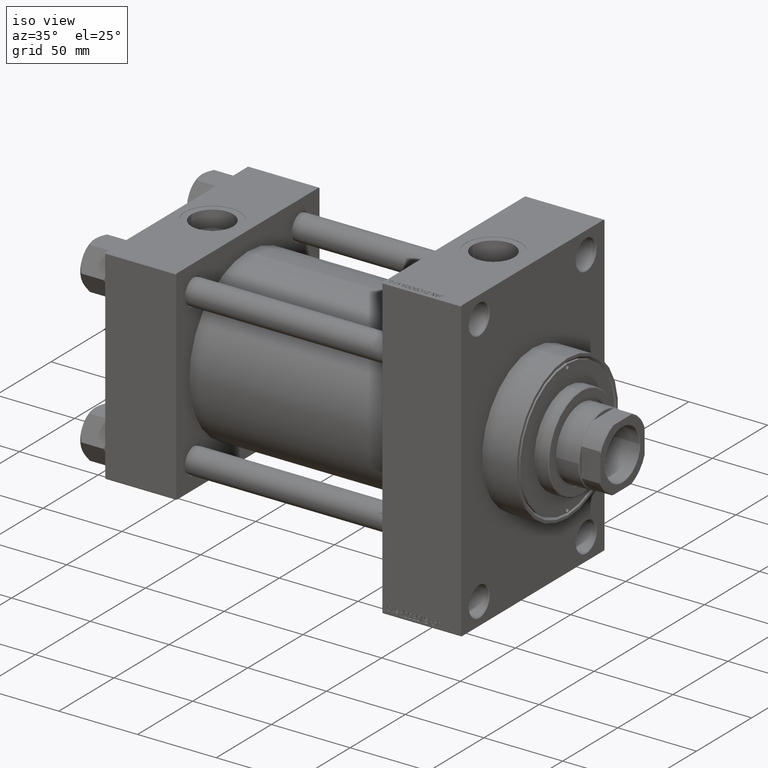
[diagram: clean part render]
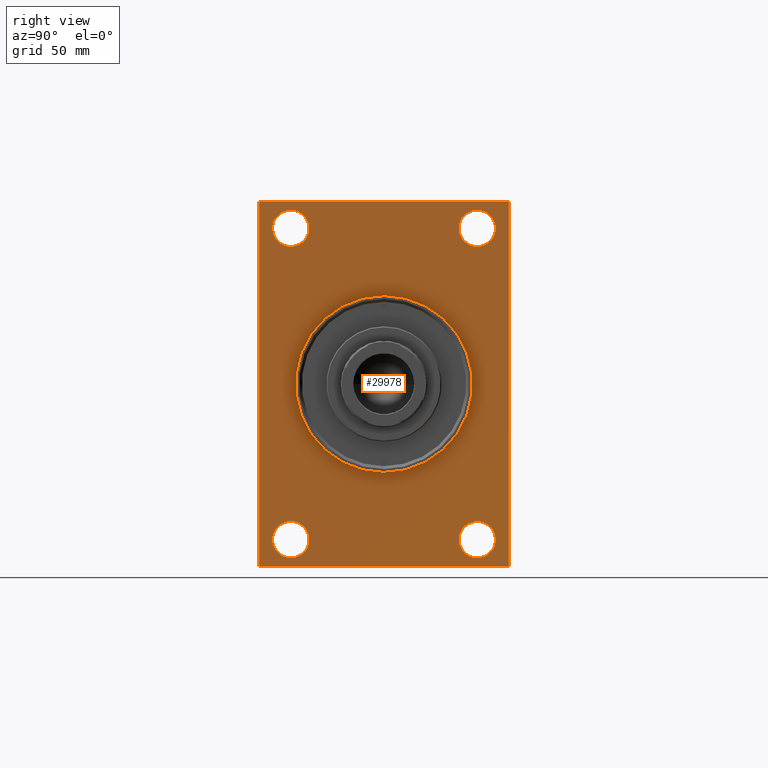
[diagram: tour spotlight — one face highlighted and labeled with its STEP entity id]
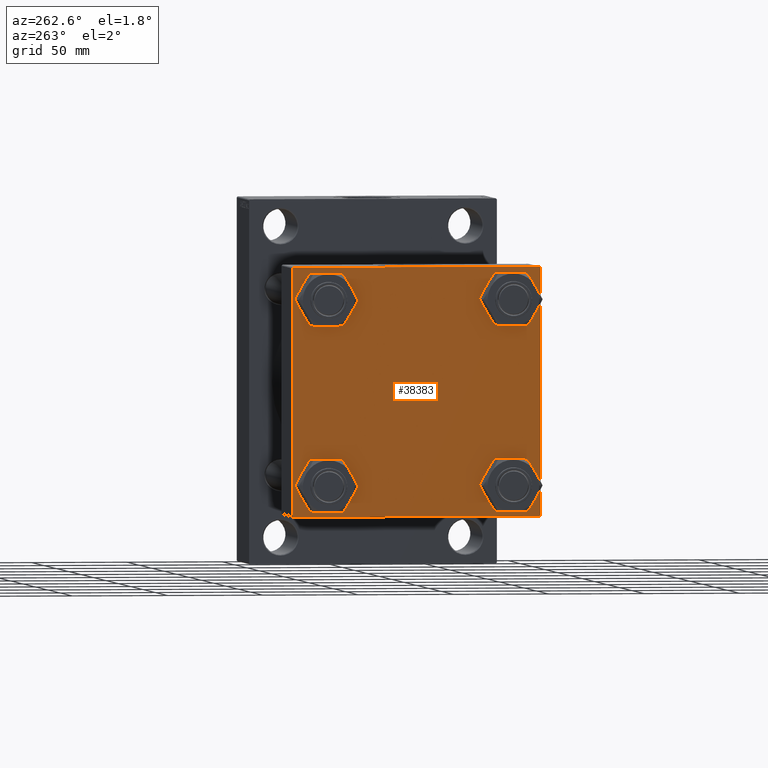
[diagram: tour spotlight — one face highlighted and labeled with its STEP entity id]
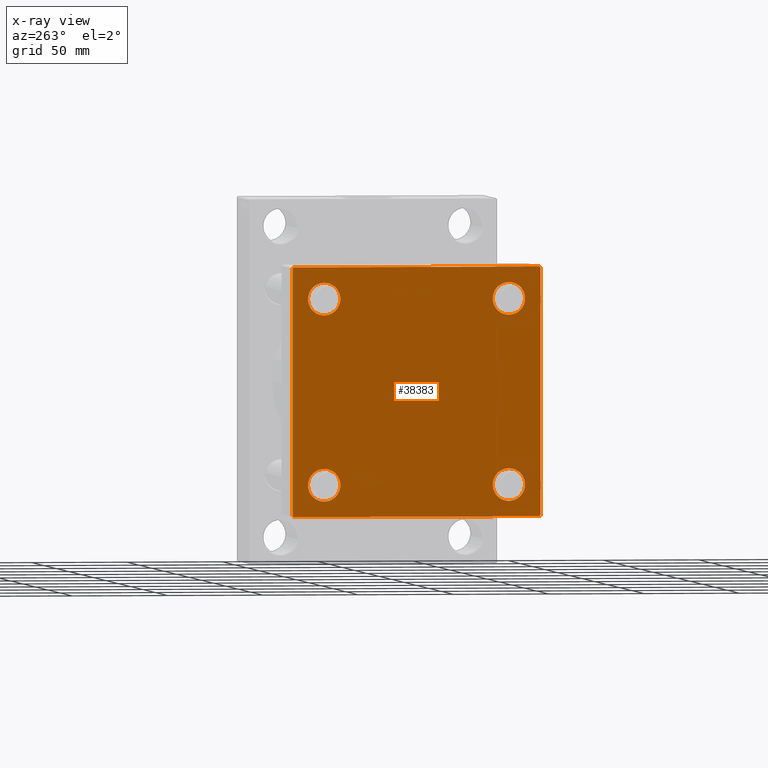
[diagram: x-ray of the same camera — body ghosted, this tour face saturated]
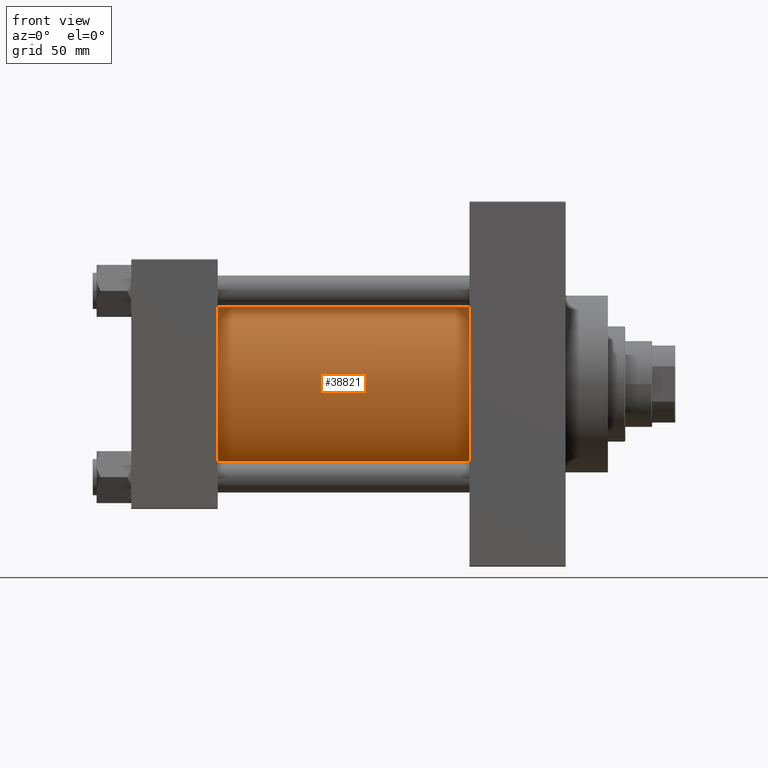
[diagram: tour spotlight — one face highlighted and labeled with its STEP entity id]
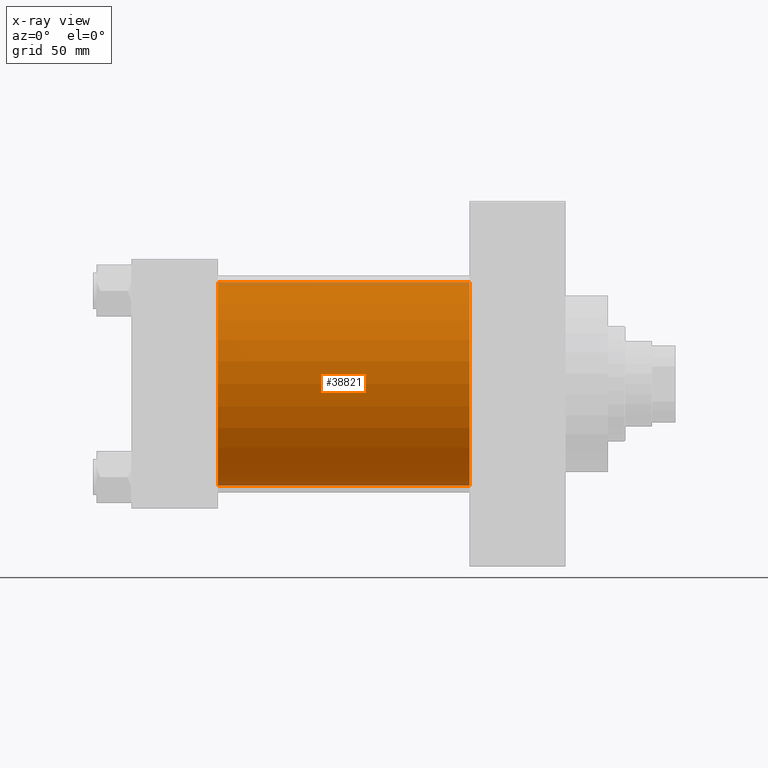
[diagram: x-ray of the same camera — body ghosted, this tour face saturated]
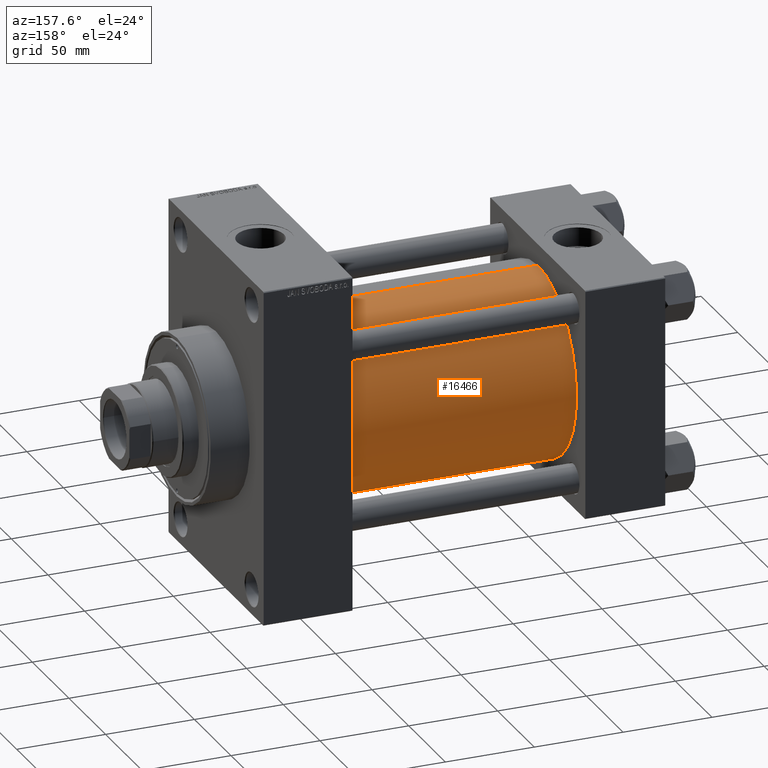
[diagram: tour spotlight — one face highlighted and labeled with its STEP entity id]
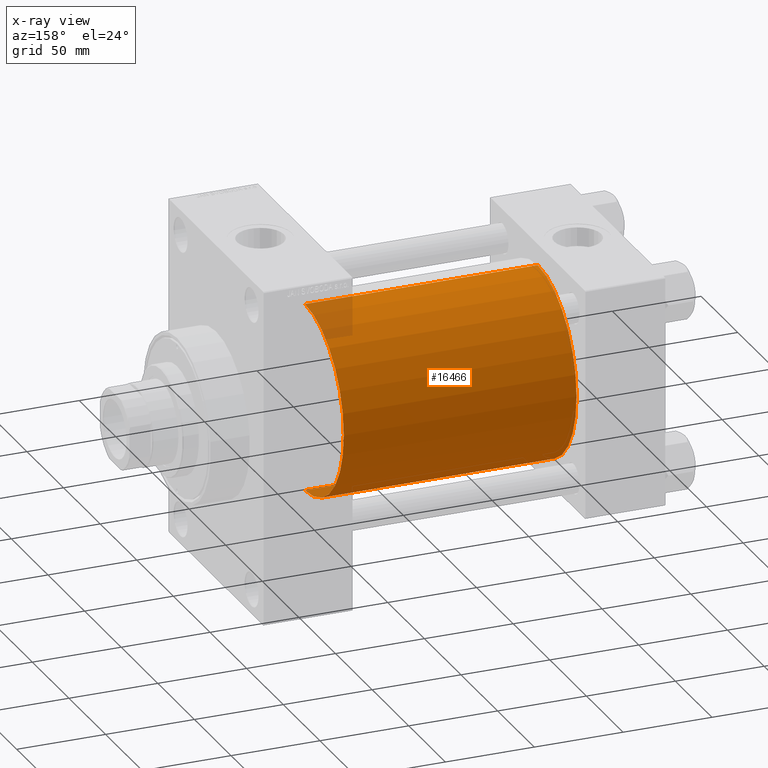
[diagram: x-ray of the same camera — body ghosted, this tour face saturated]
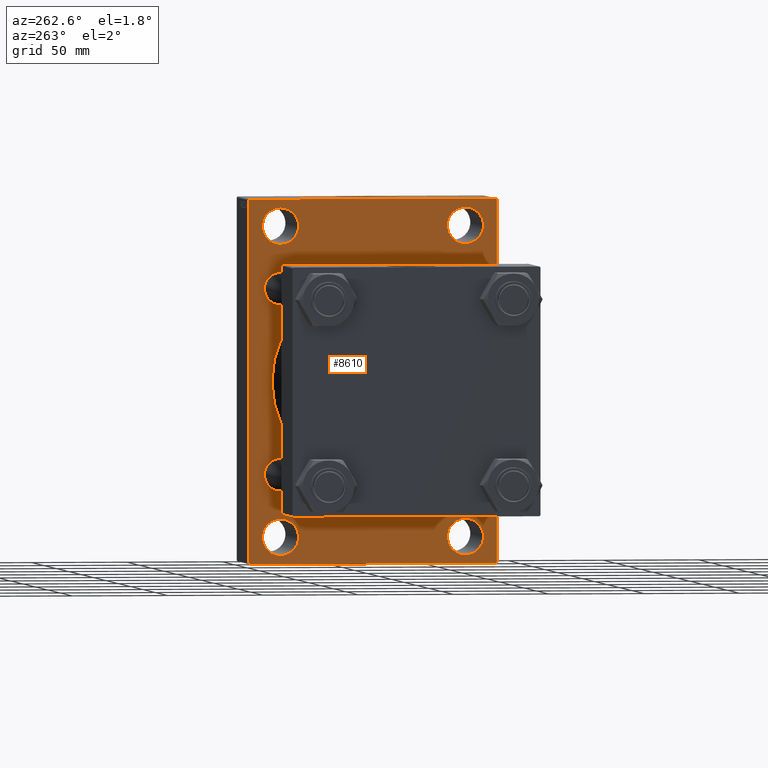
[diagram: tour spotlight — one face highlighted and labeled with its STEP entity id]
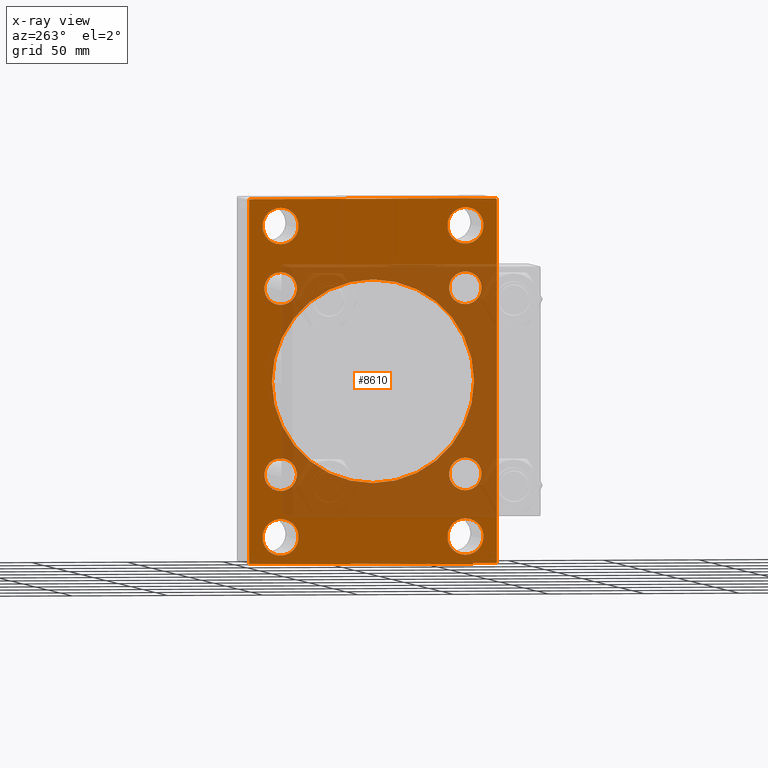
[diagram: x-ray of the same camera — body ghosted, this tour face saturated]
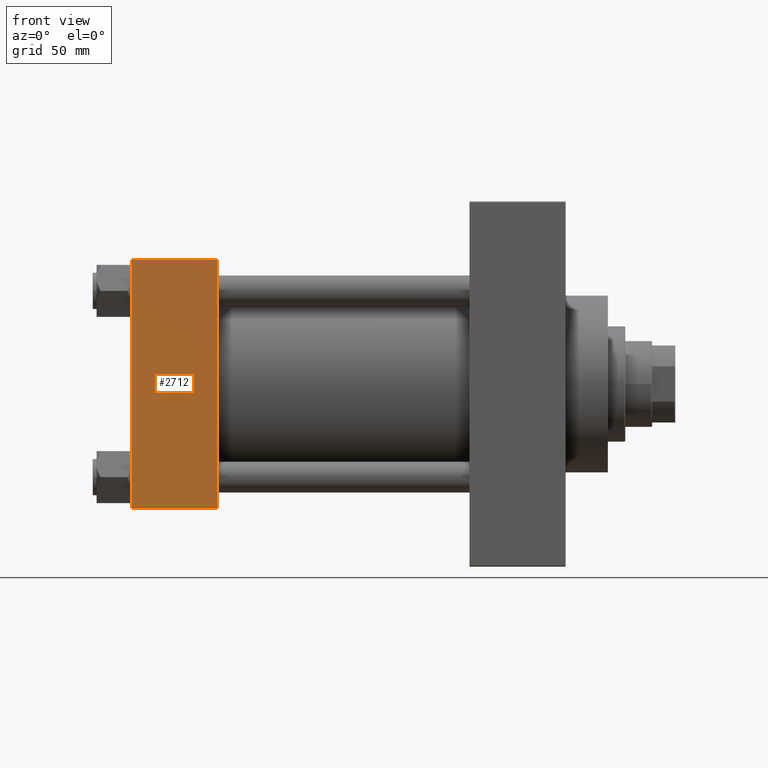
[diagram: tour spotlight — one face highlighted and labeled with its STEP entity id]
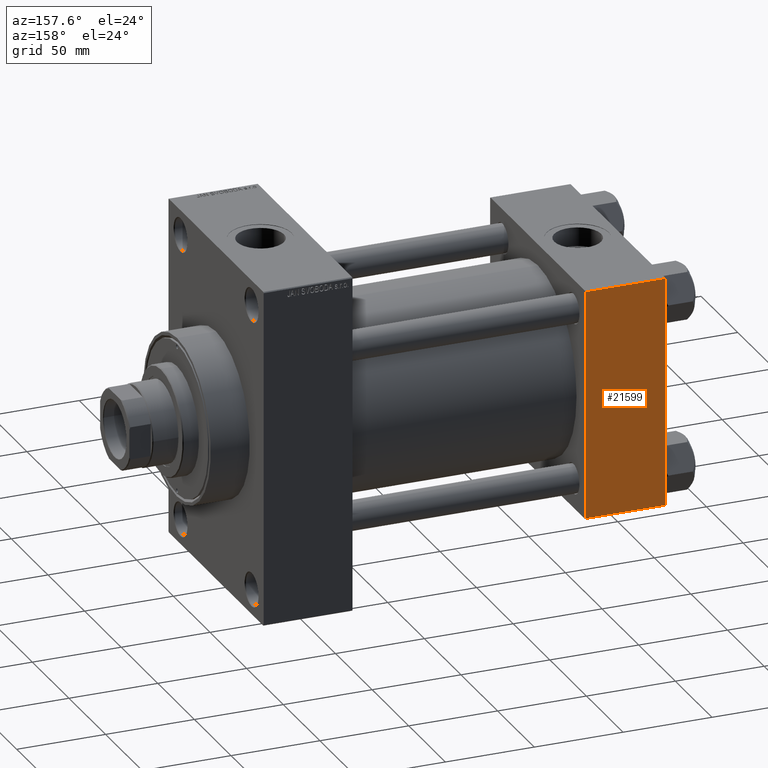
[diagram: tour spotlight — one face highlighted and labeled with its STEP entity id]
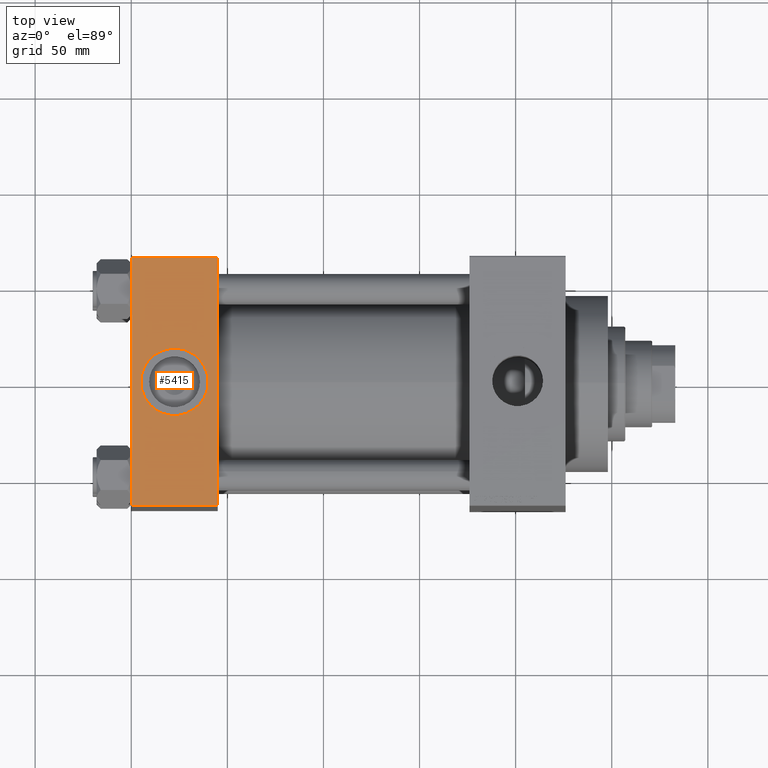
[diagram: tour spotlight — one face highlighted and labeled with its STEP entity id]
A machine part: a face-by-face anatomy tour. The part has 1159 B-rep faces; the first image is the clean iso view, then the 8 largest visible faces are spotlighted one at a time (largest first), each with its STEP entity span.

Face 1 — right view, entity #29978. In plain terms, the highlighted planar face has unit normal (-1, 0, 0).
Definition (entity closure, byte-faithful):
#310 = VERTEX_POINT ( 'NONE', #42077 ) ;
#840 = DIRECTION ( 'NONE',  ( -1.000000000000000000, 0.000000000000000000, -0.000000000000000000 ) ) ;
#1104 = DIRECTION ( 'NONE',  ( -1.000000000000000000, 0.000000000000000000, -0.000000000000000000 ) ) ;
#1604 = AXIS2_PLACEMENT_3D ( 'NONE', #35141, #24974, #9975 ) ;
#1674 = AXIS2_PLACEMENT_3D ( 'NONE', #10886, #1104, #23131 ) ;
#1759 = ORIENTED_EDGE ( 'NONE', *, *, #26874, .F. ) ;
#1885 = CARTESIAN_POINT ( 'NONE',  ( 225.9999999999999716, -65.00000000000001421, 94.50000000000000000 ) ) ;
#1960 = FACE_BOUND ( 'NONE', #34969, .T. ) ;
#2144 = DIRECTION ( 'NONE',  ( 0.000000000000000000, 0.000000000000000000, 1.000000000000000000 ) ) ;
#2538 = AXIS2_PLACEMENT_3D ( 'NONE', #7888, #840, #14906 ) ;
#2583 = VERTEX_POINT ( 'NONE', #25649 ) ;
#2934 = FACE_BOUND ( 'NONE', #5302, .T. ) ;
#3109 = VECTOR ( 'NONE', #21982, 1000.000000000000000 ) ;
#3426 = CARTESIAN_POINT ( 'NONE',  ( 225.9999999999999716, -48.50000000000000000, 71.50000000000002842 ) ) ;
#3713 = ORIENTED_EDGE ( 'NONE', *, *, #13212, .T. ) ;
#3799 = LINE ( 'NONE', #11320, #5987 ) ;
#4450 = CARTESIAN_POINT ( 'NONE',  ( 225.9999999999999716, -65.00000000000001421, 94.99999999999997158 ) ) ;
#4686 = LINE ( 'NONE', #4450, #37301 ) ;
#5008 = VERTEX_POINT ( 'NONE', #42707 ) ;
#5302 = EDGE_LOOP ( 'NONE', ( #20997, #46604 ) ) ;
#5491 = ORIENTED_EDGE ( 'NONE', *, *, #29963, .T. ) ;
#5610 = AXIS2_PLACEMENT_3D ( 'NONE', #15896, #7946, #8178 ) ;
#5644 = VECTOR ( 'NONE', #47278, 1000.000000000000114 ) ;
#5888 = DIRECTION ( 'NONE',  ( -1.000000000000000000, 0.000000000000000000, -0.000000000000000000 ) ) ;
#5987 = VECTOR ( 'NONE', #15178, 1000.000000000000000 ) ;
#6129 = ORIENTED_EDGE ( 'NONE', *, *, #46472, .T. ) ;
#6177 = VERTEX_POINT ( 'NONE', #3426 ) ;
#6590 = FACE_BOUND ( 'NONE', #16865, .T. ) ;
#7187 = ORIENTED_EDGE ( 'NONE', *, *, #39130, .T. ) ;
#7189 = CIRCLE ( 'NONE', #5610, 46.00000000000000000 ) ;
#7213 = CARTESIAN_POINT ( 'NONE',  ( 225.9999999999999716, -48.49999999999999289, -71.50000000000004263 ) ) ;
#7229 = CARTESIAN_POINT ( 'NONE',  ( 225.9999999999999716, 64.99999999999997158, 94.99999999999997158 ) ) ;
#7825 = VECTOR ( 'NONE', #34428, 1000.000000000000114 ) ;
#7888 = CARTESIAN_POINT ( 'NONE',  ( 225.9999999999999716, 48.50000000000000711, -81.00000000000001421 ) ) ;
#7946 = DIRECTION ( 'NONE',  ( 1.000000000000000000, 0.000000000000000000, 0.000000000000000000 ) ) ;
#8178 = DIRECTION ( 'NONE',  ( 0.000000000000000000, 0.000000000000000000, -1.000000000000000000 ) ) ;
#8299 = CARTESIAN_POINT ( 'NONE',  ( 225.9999999999999716, 64.49999999999997158, 94.99999999999997158 ) ) ;
#8505 = EDGE_LOOP ( 'NONE', ( #37838, #3713 ) ) ;
#8681 = AXIS2_PLACEMENT_3D ( 'NONE', #35742, #9603, #24834 ) ;
#9316 = CARTESIAN_POINT ( 'NONE',  ( 225.9999999999999716, 48.50000000000000711, 71.50000000000002842 ) ) ;
#9365 = AXIS2_PLACEMENT_3D ( 'NONE', #27874, #40455, #40927 ) ;
#9435 = CARTESIAN_POINT ( 'NONE',  ( 225.9999999999999716, 48.50000000000000711, 81.00000000000000000 ) ) ;
#9603 = DIRECTION ( 'NONE',  ( -1.000000000000000000, 0.000000000000000000, -0.000000000000000000 ) ) ;
#9975 = DIRECTION ( 'NONE',  ( 0.000000000000000000, 0.000000000000000000, 1.000000000000000000 ) ) ;
#10851 = VERTEX_POINT ( 'NONE', #22275 ) ;
#10886 = CARTESIAN_POINT ( 'NONE',  ( 225.9999999999999716, 48.50000000000000711, -81.00000000000001421 ) ) ;
#11000 = CIRCLE ( 'NONE', #8681, 9.499999999999980460 ) ;
#11320 = CARTESIAN_POINT ( 'NONE',  ( 225.9999999999999716, 64.99999999999998579, -94.50000000000002842 ) ) ;
#11352 = AXIS2_PLACEMENT_3D ( 'NONE', #42918, #5888, #21145 ) ;
#11639 = EDGE_CURVE ( 'NONE', #39524, #44998, #37058, .T. ) ;
#11916 = DIRECTION ( 'NONE',  ( 0.000000000000000000, -1.000000000000000000, -1.067522139062650425E-16 ) ) ;
#12462 = CIRCLE ( 'NONE', #1674, 9.499999999999980460 ) ;
#12502 = CARTESIAN_POINT ( 'NONE',  ( 225.9999999999999716, 64.99999999999997158, 94.49999999999997158 ) ) ;
#13212 = EDGE_CURVE ( 'NONE', #18395, #6177, #22948, .T. ) ;
#14385 = VERTEX_POINT ( 'NONE', #37458 ) ;
#14670 = VERTEX_POINT ( 'NONE', #45593 ) ;
#14906 = DIRECTION ( 'NONE',  ( 0.000000000000000000, 0.000000000000000000, 1.000000000000000000 ) ) ;
#15178 = DIRECTION ( 'NONE',  ( -0.000000000000000000, 0.7071067811865573427, 0.7071067811865378028 ) ) ;
#15452 = DIRECTION ( 'NONE',  ( -1.000000000000000000, 0.000000000000000000, -0.000000000000000000 ) ) ;
#15896 = CARTESIAN_POINT ( 'NONE',  ( 225.9999999999999716, 0.000000000000000000, 0.000000000000000000 ) ) ;
#16428 = CIRCLE ( 'NONE', #2538, 9.499999999999980460 ) ;
#16508 = DIRECTION ( 'NONE',  ( 0.000000000000000000, 0.000000000000000000, -1.000000000000000000 ) ) ;
#16726 = FACE_OUTER_BOUND ( 'NONE', #20822, .T. ) ;
#16865 = EDGE_LOOP ( 'NONE', ( #44923, #5491 ) ) ;
#17584 = ORIENTED_EDGE ( 'NONE', *, *, #24975, .T. ) ;
#17625 = AXIS2_PLACEMENT_3D ( 'NONE', #22123, #19192, #18489 ) ;
#18395 = VERTEX_POINT ( 'NONE', #35546 ) ;
#18488 = EDGE_CURVE ( 'NONE', #310, #10851, #3799, .T. ) ;
#18489 = DIRECTION ( 'NONE',  ( 0.000000000000000000, 0.000000000000000000, 1.000000000000000000 ) ) ;
#18887 = CARTESIAN_POINT ( 'NONE',  ( 225.9999999999999716, -65.00000000000001421, 94.50000000000000000 ) ) ;
#19192 = DIRECTION ( 'NONE',  ( -1.000000000000000000, 0.000000000000000000, -0.000000000000000000 ) ) ;
#19387 = EDGE_LOOP ( 'NONE', ( #7187, #6129 ) ) ;
#19624 = VERTEX_POINT ( 'NONE', #9316 ) ;
#19858 = EDGE_CURVE ( 'NONE', #19624, #22791, #36194, .T. ) ;
#20383 = DIRECTION ( 'NONE',  ( 1.000000000000000000, 0.000000000000000000, 0.000000000000000000 ) ) ;
#20822 = EDGE_LOOP ( 'NONE', ( #45147, #42455, #36839, #32657, #1759, #36932, #17584, #41928 ) ) ;
#20997 = ORIENTED_EDGE ( 'NONE', *, *, #19858, .T. ) ;
#21145 = DIRECTION ( 'NONE',  ( 0.000000000000000000, 0.000000000000000000, 1.000000000000000000 ) ) ;
#21338 = FACE_BOUND ( 'NONE', #19387, .T. ) ;
#21982 = DIRECTION ( 'NONE',  ( 0.000000000000000000, -1.000000000000000000, 0.000000000000000000 ) ) ;
#22123 = CARTESIAN_POINT ( 'NONE',  ( 225.9999999999999716, 48.50000000000000711, 81.00000000000000000 ) ) ;
#22275 = CARTESIAN_POINT ( 'NONE',  ( 225.9999999999999716, 64.99999999999998579, -94.50000000000002842 ) ) ;
#22791 = VERTEX_POINT ( 'NONE', #35887 ) ;
#22948 = CIRCLE ( 'NONE', #11352, 9.499999999999980460 ) ;
#23131 = DIRECTION ( 'NONE',  ( 0.000000000000000000, 0.000000000000000000, 1.000000000000000000 ) ) ;
#23437 = EDGE_CURVE ( 'NONE', #46160, #2583, #47865, .T. ) ;
#23553 = VERTEX_POINT ( 'NONE', #32478 ) ;
#23997 = AXIS2_PLACEMENT_3D ( 'NONE', #9435, #28540, #2144 ) ;
#24451 = EDGE_CURVE ( 'NONE', #310, #14670, #42142, .T. ) ;
#24834 = DIRECTION ( 'NONE',  ( 0.000000000000000000, 0.000000000000000000, 1.000000000000000000 ) ) ;
#24974 = DIRECTION ( 'NONE',  ( -1.000000000000000000, 0.000000000000000000, -0.000000000000000000 ) ) ;
#24975 = EDGE_CURVE ( 'NONE', #14385, #39524, #43760, .T. ) ;
#25649 = CARTESIAN_POINT ( 'NONE',  ( 225.9999999999999716, 5.633375276077824704E-15, -46.00000000000000000 ) ) ;
#26651 = ORIENTED_EDGE ( 'NONE', *, *, #23437, .F. ) ;
#26874 = EDGE_CURVE ( 'NONE', #28312, #10851, #33953, .T. ) ;
#27874 = CARTESIAN_POINT ( 'NONE',  ( 225.9999999999999716, 0.000000000000000000, 0.000000000000000000 ) ) ;
#28312 = VERTEX_POINT ( 'NONE', #12502 ) ;
#28540 = DIRECTION ( 'NONE',  ( -1.000000000000000000, 0.000000000000000000, -0.000000000000000000 ) ) ;
#29314 = AXIS2_PLACEMENT_3D ( 'NONE', #35151, #20383, #16508 ) ;
#29397 = EDGE_CURVE ( 'NONE', #6177, #18395, #11000, .T. ) ;
#29553 = DIRECTION ( 'NONE',  ( -0.000000000000000000, -0.7071067811865573427, -0.7071067811865376918 ) ) ;
#29851 = DIRECTION ( 'NONE',  ( 0.000000000000000000, 7.304098846218135653E-17, -1.000000000000000000 ) ) ;
#29862 = EDGE_CURVE ( 'NONE', #28312, #14385, #45321, .T. ) ;
#29963 = EDGE_CURVE ( 'NONE', #44437, #5008, #30227, .T. ) ;
#29978 = ADVANCED_FACE ( 'NONE', ( #39748, #6590, #21338, #2934, #1960, #16726 ), #31495, .F. ) ;
#30227 = CIRCLE ( 'NONE', #1604, 9.499999999999980460 ) ;
#30304 = CARTESIAN_POINT ( 'NONE',  ( 225.9999999999999716, 64.99999999999998579, -95.00000000000001421 ) ) ;
#31495 = PLANE ( 'NONE',  #9365 ) ;
#31853 = CARTESIAN_POINT ( 'NONE',  ( 225.9999999999999716, 48.50000000000000711, -71.50000000000004263 ) ) ;
#32478 = CARTESIAN_POINT ( 'NONE',  ( 225.9999999999999716, -65.00000000000001421, -94.50000000000008527 ) ) ;
#32544 = EDGE_CURVE ( 'NONE', #5008, #44437, #38805, .T. ) ;
#32657 = ORIENTED_EDGE ( 'NONE', *, *, #18488, .T. ) ;
#33240 = EDGE_CURVE ( 'NONE', #44998, #23553, #4686, .T. ) ;
#33708 = VECTOR ( 'NONE', #29553, 1000.000000000000114 ) ;
#33953 = LINE ( 'NONE', #41463, #37982 ) ;
#34222 = CARTESIAN_POINT ( 'NONE',  ( 225.9999999999999716, -64.50000000000002842, 94.99999999999997158 ) ) ;
#34309 = CARTESIAN_POINT ( 'NONE',  ( 225.9999999999999716, 0.000000000000000000, 46.00000000000000000 ) ) ;
#34428 = DIRECTION ( 'NONE',  ( 0.000000000000000000, -0.7071067811865474617, 0.7071067811865474617 ) ) ;
#34969 = EDGE_LOOP ( 'NONE', ( #26651, #36239 ) ) ;
#35141 = CARTESIAN_POINT ( 'NONE',  ( 225.9999999999999716, -48.49999999999999289, -81.00000000000001421 ) ) ;
#35151 = CARTESIAN_POINT ( 'NONE',  ( 225.9999999999999716, 0.000000000000000000, 0.000000000000000000 ) ) ;
#35546 = CARTESIAN_POINT ( 'NONE',  ( 225.9999999999999716, -48.50000000000000000, 90.49999999999998579 ) ) ;
#35742 = CARTESIAN_POINT ( 'NONE',  ( 225.9999999999999716, -48.50000000000000000, 81.00000000000000000 ) ) ;
#35887 = CARTESIAN_POINT ( 'NONE',  ( 225.9999999999999716, 48.50000000000000711, 90.49999999999998579 ) ) ;
#36194 = CIRCLE ( 'NONE', #17625, 9.499999999999980460 ) ;
#36239 = ORIENTED_EDGE ( 'NONE', *, *, #46211, .F. ) ;
#36391 = CIRCLE ( 'NONE', #23997, 9.499999999999980460 ) ;
#36839 = ORIENTED_EDGE ( 'NONE', *, *, #24451, .F. ) ;
#36932 = ORIENTED_EDGE ( 'NONE', *, *, #29862, .T. ) ;
#37058 = LINE ( 'NONE', #18887, #33708 ) ;
#37091 = VECTOR ( 'NONE', #11916, 1000.000000000000000 ) ;
#37301 = VECTOR ( 'NONE', #39901, 1000.000000000000000 ) ;
#37371 = EDGE_CURVE ( 'NONE', #22791, #19624, #36391, .T. ) ;
#37458 = CARTESIAN_POINT ( 'NONE',  ( 225.9999999999999716, 64.49999999999997158, 94.99999999999997158 ) ) ;
#37838 = ORIENTED_EDGE ( 'NONE', *, *, #29397, .T. ) ;
#37908 = CARTESIAN_POINT ( 'NONE',  ( 225.9999999999999716, 48.50000000000000711, -90.50000000000000000 ) ) ;
#37982 = VECTOR ( 'NONE', #29851, 1000.000000000000000 ) ;
#38805 = CIRCLE ( 'NONE', #42661, 9.499999999999980460 ) ;
#39049 = LINE ( 'NONE', #47038, #5644 ) ;
#39130 = EDGE_CURVE ( 'NONE', #39132, #41234, #12462, .T. ) ;
#39132 = VERTEX_POINT ( 'NONE', #37908 ) ;
#39524 = VERTEX_POINT ( 'NONE', #34222 ) ;
#39748 = FACE_BOUND ( 'NONE', #8505, .T. ) ;
#39901 = DIRECTION ( 'NONE',  ( 0.000000000000000000, 0.000000000000000000, -1.000000000000000000 ) ) ;
#40455 = DIRECTION ( 'NONE',  ( -1.000000000000000000, 0.000000000000000000, -0.000000000000000000 ) ) ;
#40927 = DIRECTION ( 'NONE',  ( -0.000000000000000000, 0.000000000000000000, 1.000000000000000000 ) ) ;
#41234 = VERTEX_POINT ( 'NONE', #31853 ) ;
#41463 = CARTESIAN_POINT ( 'NONE',  ( 225.9999999999999716, 64.99999999999997158, 94.99999999999997158 ) ) ;
#41594 = CARTESIAN_POINT ( 'NONE',  ( 225.9999999999999716, -48.49999999999999289, -81.00000000000001421 ) ) ;
#41928 = ORIENTED_EDGE ( 'NONE', *, *, #11639, .T. ) ;
#42077 = CARTESIAN_POINT ( 'NONE',  ( 225.9999999999999716, 64.49999999999998579, -95.00000000000001421 ) ) ;
#42142 = LINE ( 'NONE', #30304, #37091 ) ;
#42455 = ORIENTED_EDGE ( 'NONE', *, *, #47386, .T. ) ;
#42661 = AXIS2_PLACEMENT_3D ( 'NONE', #41594, #15452, #45458 ) ;
#42707 = CARTESIAN_POINT ( 'NONE',  ( 225.9999999999999716, -48.49999999999999289, -90.50000000000000000 ) ) ;
#42918 = CARTESIAN_POINT ( 'NONE',  ( 225.9999999999999716, -48.50000000000000000, 81.00000000000000000 ) ) ;
#43760 = LINE ( 'NONE', #7229, #3109 ) ;
#44437 = VERTEX_POINT ( 'NONE', #7213 ) ;
#44923 = ORIENTED_EDGE ( 'NONE', *, *, #32544, .T. ) ;
#44998 = VERTEX_POINT ( 'NONE', #1885 ) ;
#45147 = ORIENTED_EDGE ( 'NONE', *, *, #33240, .T. ) ;
#45321 = LINE ( 'NONE', #8299, #7825 ) ;
#45458 = DIRECTION ( 'NONE',  ( 0.000000000000000000, 0.000000000000000000, 1.000000000000000000 ) ) ;
#45593 = CARTESIAN_POINT ( 'NONE',  ( 225.9999999999999716, -64.50000000000007105, -95.00000000000002842 ) ) ;
#46160 = VERTEX_POINT ( 'NONE', #34309 ) ;
#46211 = EDGE_CURVE ( 'NONE', #2583, #46160, #7189, .T. ) ;
#46472 = EDGE_CURVE ( 'NONE', #41234, #39132, #16428, .T. ) ;
#46604 = ORIENTED_EDGE ( 'NONE', *, *, #37371, .T. ) ;
#47038 = CARTESIAN_POINT ( 'NONE',  ( 225.9999999999999716, -64.50000000000007105, -95.00000000000002842 ) ) ;
#47278 = DIRECTION ( 'NONE',  ( 0.000000000000000000, 0.7071067811865474617, -0.7071067811865474617 ) ) ;
#47386 = EDGE_CURVE ( 'NONE', #23553, #14670, #39049, .T. ) ;
#47865 = CIRCLE ( 'NONE', #29314, 46.00000000000000000 ) ;

Face 2 — auxiliary view, entity #38383. An x-ray twin of the same camera follows (body ghosted, this face saturated) — the face is partly hidden behind the body. In plain terms, the highlighted planar face has unit normal (-1, 0, 0).
Definition (entity closure, byte-faithful):
#141 = DIRECTION ( 'NONE',  ( 1.000000000000000000, -0.000000000000000000, 0.000000000000000000 ) ) ;
#570 = EDGE_CURVE ( 'NONE', #10752, #45806, #6032, .T. ) ;
#1116 = LINE ( 'NONE', #16351, #5316 ) ;
#1713 = DIRECTION ( 'NONE',  ( 0.000000000000000000, 0.000000000000000000, 1.000000000000000000 ) ) ;
#1858 = CARTESIAN_POINT ( 'NONE',  ( 0.000000000000000000, 64.49999999999997158, 65.00000000000001421 ) ) ;
#2010 = EDGE_CURVE ( 'NONE', #16619, #6354, #23082, .T. ) ;
#2212 = EDGE_CURVE ( 'NONE', #45984, #42907, #24570, .T. ) ;
#2522 = EDGE_LOOP ( 'NONE', ( #41739, #16961 ) ) ;
#2949 = EDGE_LOOP ( 'NONE', ( #14511, #4648 ) ) ;
#2959 = EDGE_CURVE ( 'NONE', #28790, #38437, #1116, .T. ) ;
#2982 = CARTESIAN_POINT ( 'NONE',  ( 0.000000000000000000, -48.44999999999999574, -39.95000000000001705 ) ) ;
#3044 = ORIENTED_EDGE ( 'NONE', *, *, #15221, .T. ) ;
#3255 = VERTEX_POINT ( 'NONE', #22618 ) ;
#3927 = DIRECTION ( 'NONE',  ( -0.000000000000000000, -0.7071067811865474617, -0.7071067811865474617 ) ) ;
#4072 = AXIS2_PLACEMENT_3D ( 'NONE', #40087, #141, #21930 ) ;
#4172 = CARTESIAN_POINT ( 'NONE',  ( 0.000000000000000000, 64.74999999999997158, -64.74999999999997158 ) ) ;
#4648 = ORIENTED_EDGE ( 'NONE', *, *, #40652, .T. ) ;
#5316 = VECTOR ( 'NONE', #45411, 1000.000000000000000 ) ;
#5739 = DIRECTION ( 'NONE',  ( 1.000000000000000000, -0.000000000000000000, 0.000000000000000000 ) ) ;
#6032 = CIRCLE ( 'NONE', #46985, 8.500000000000007105 ) ;
#6178 = DIRECTION ( 'NONE',  ( 0.000000000000000000, 0.000000000000000000, -1.000000000000000000 ) ) ;
#6354 = VERTEX_POINT ( 'NONE', #28027 ) ;
#6399 = CIRCLE ( 'NONE', #17192, 8.500000000000007105 ) ;
#6995 = AXIS2_PLACEMENT_3D ( 'NONE', #30756, #12364, #8273 ) ;
#7121 = EDGE_CURVE ( 'NONE', #40772, #36360, #41027, .T. ) ;
#7590 = VECTOR ( 'NONE', #6178, 1000.000000000000000 ) ;
#7676 = LINE ( 'NONE', #37213, #31439 ) ;
#7843 = VERTEX_POINT ( 'NONE', #1858 ) ;
#7918 = CIRCLE ( 'NONE', #25667, 8.500000000000007105 ) ;
#8021 = CARTESIAN_POINT ( 'NONE',  ( 0.000000000000000000, -48.44999999999999574, 48.45000000000003126 ) ) ;
#8273 = DIRECTION ( 'NONE',  ( 0.000000000000000000, 0.000000000000000000, 1.000000000000000000 ) ) ;
#8521 = ORIENTED_EDGE ( 'NONE', *, *, #14931, .T. ) ;
#9478 = DIRECTION ( 'NONE',  ( 1.000000000000000000, -0.000000000000000000, 0.000000000000000000 ) ) ;
#9835 = VECTOR ( 'NONE', #3927, 1000.000000000000114 ) ;
#10321 = DIRECTION ( 'NONE',  ( 0.000000000000000000, 0.000000000000000000, 1.000000000000000000 ) ) ;
#10398 = DIRECTION ( 'NONE',  ( -0.000000000000000000, 0.000000000000000000, 1.000000000000000000 ) ) ;
#10752 = VERTEX_POINT ( 'NONE', #31728 ) ;
#11549 = CIRCLE ( 'NONE', #44783, 8.500000000000007105 ) ;
#11919 = LINE ( 'NONE', #4172, #9835 ) ;
#11934 = EDGE_LOOP ( 'NONE', ( #32895, #27693 ) ) ;
#12364 = DIRECTION ( 'NONE',  ( 1.000000000000000000, -0.000000000000000000, 0.000000000000000000 ) ) ;
#13199 = CARTESIAN_POINT ( 'NONE',  ( 0.000000000000000000, 65.00000000000000000, -64.99999999999998579 ) ) ;
#13235 = EDGE_CURVE ( 'NONE', #3255, #39523, #19077, .T. ) ;
#13464 = CARTESIAN_POINT ( 'NONE',  ( 0.000000000000000000, 65.00000000000000000, 64.49999999999998579 ) ) ;
#14022 = FACE_OUTER_BOUND ( 'NONE', #32456, .T. ) ;
#14511 = ORIENTED_EDGE ( 'NONE', *, *, #7121, .T. ) ;
#14931 = EDGE_CURVE ( 'NONE', #28188, #45984, #11919, .T. ) ;
#14966 = CARTESIAN_POINT ( 'NONE',  ( 0.000000000000000000, 48.45000000000000995, -56.95000000000002416 ) ) ;
#15211 = AXIS2_PLACEMENT_3D ( 'NONE', #28400, #39541, #36155 ) ;
#15221 = EDGE_CURVE ( 'NONE', #45342, #28188, #33114, .T. ) ;
#16094 = LINE ( 'NONE', #42002, #7590 ) ;
#16351 = CARTESIAN_POINT ( 'NONE',  ( -0.000000000000000000, -64.74999999999819522, 64.75000000000179057 ) ) ;
#16406 = ORIENTED_EDGE ( 'NONE', *, *, #16514, .F. ) ;
#16514 = EDGE_CURVE ( 'NONE', #28790, #43007, #16094, .T. ) ;
#16619 = VERTEX_POINT ( 'NONE', #22130 ) ;
#16824 = DIRECTION ( 'NONE',  ( 0.000000000000000000, 0.000000000000000000, 1.000000000000000000 ) ) ;
#16961 = ORIENTED_EDGE ( 'NONE', *, *, #2010, .T. ) ;
#17192 = AXIS2_PLACEMENT_3D ( 'NONE', #39356, #43463, #10321 ) ;
#17505 = EDGE_CURVE ( 'NONE', #7843, #38437, #7676, .T. ) ;
#17643 = FACE_BOUND ( 'NONE', #2522, .T. ) ;
#18470 = VECTOR ( 'NONE', #27963, 1000.000000000000000 ) ;
#19077 = CIRCLE ( 'NONE', #15211, 8.500000000000007105 ) ;
#19118 = DIRECTION ( 'NONE',  ( 0.000000000000000000, -0.7071067811865279218, 0.7071067811865671127 ) ) ;
#19546 = VECTOR ( 'NONE', #19118, 1000.000000000000000 ) ;
#20060 = CARTESIAN_POINT ( 'NONE',  ( 0.000000000000000000, 64.49999999999997158, -64.99999999999998579 ) ) ;
#20502 = DIRECTION ( 'NONE',  ( 0.000000000000000000, 0.000000000000000000, 1.000000000000000000 ) ) ;
#20800 = CARTESIAN_POINT ( 'NONE',  ( 0.000000000000000000, 0.000000000000000000, 0.000000000000000000 ) ) ;
#21092 = CIRCLE ( 'NONE', #4072, 8.500000000000007105 ) ;
#21548 = CARTESIAN_POINT ( 'NONE',  ( 0.000000000000000000, -65.00000000000000000, -64.49999999999991473 ) ) ;
#21802 = DIRECTION ( 'NONE',  ( 0.000000000000000000, 0.7071067811865474617, -0.7071067811865474617 ) ) ;
#21930 = DIRECTION ( 'NONE',  ( 0.000000000000000000, 0.000000000000000000, 1.000000000000000000 ) ) ;
#22130 = CARTESIAN_POINT ( 'NONE',  ( 0.000000000000000000, -48.44999999999999574, 39.95000000000001705 ) ) ;
#22348 = ORIENTED_EDGE ( 'NONE', *, *, #570, .T. ) ;
#22618 = CARTESIAN_POINT ( 'NONE',  ( 0.000000000000000000, 48.45000000000000995, 56.95000000000002416 ) ) ;
#22972 = EDGE_CURVE ( 'NONE', #6354, #16619, #11549, .T. ) ;
#23082 = CIRCLE ( 'NONE', #40894, 8.500000000000007105 ) ;
#23734 = CARTESIAN_POINT ( 'NONE',  ( 0.000000000000000000, -64.49999999999994316, -65.00000000000000000 ) ) ;
#24404 = CARTESIAN_POINT ( 'NONE',  ( 0.000000000000000000, 65.00000000000000000, -64.49999999999995737 ) ) ;
#24570 = LINE ( 'NONE', #13199, #18470 ) ;
#24605 = EDGE_CURVE ( 'NONE', #7843, #45342, #47467, .T. ) ;
#25625 = CARTESIAN_POINT ( 'NONE',  ( 0.000000000000000000, -64.49999999999997158, 65.00000000000000000 ) ) ;
#25667 = AXIS2_PLACEMENT_3D ( 'NONE', #38757, #9478, #1713 ) ;
#25909 = CARTESIAN_POINT ( 'NONE',  ( 0.000000000000000000, 64.74999999999998579, 64.74999999999998579 ) ) ;
#27626 = DIRECTION ( 'NONE',  ( 1.000000000000000000, -0.000000000000000000, 0.000000000000000000 ) ) ;
#27693 = ORIENTED_EDGE ( 'NONE', *, *, #45351, .T. ) ;
#27963 = DIRECTION ( 'NONE',  ( 0.000000000000000000, -1.000000000000000000, -1.067522139062650425E-16 ) ) ;
#28027 = CARTESIAN_POINT ( 'NONE',  ( 0.000000000000000000, -48.44999999999999574, 56.95000000000003837 ) ) ;
#28188 = VERTEX_POINT ( 'NONE', #24404 ) ;
#28400 = CARTESIAN_POINT ( 'NONE',  ( 0.000000000000000000, 48.45000000000000995, 48.45000000000001705 ) ) ;
#28787 = PLANE ( 'NONE',  #37220 ) ;
#28790 = VERTEX_POINT ( 'NONE', #36399 ) ;
#29309 = LINE ( 'NONE', #40924, #19546 ) ;
#29706 = DIRECTION ( 'NONE',  ( 0.000000000000000000, -1.000000000000000000, -1.067522139062650425E-16 ) ) ;
#29951 = CARTESIAN_POINT ( 'NONE',  ( 0.000000000000000000, 65.00000000000000000, 65.00000000000001421 ) ) ;
#30718 = VECTOR ( 'NONE', #44714, 1000.000000000000000 ) ;
#30756 = CARTESIAN_POINT ( 'NONE',  ( 0.000000000000000000, 48.45000000000000995, -48.45000000000001705 ) ) ;
#31439 = VECTOR ( 'NONE', #29706, 1000.000000000000000 ) ;
#31728 = CARTESIAN_POINT ( 'NONE',  ( 0.000000000000000000, -48.44999999999999574, -56.95000000000003837 ) ) ;
#32410 = FACE_BOUND ( 'NONE', #2949, .T. ) ;
#32456 = EDGE_LOOP ( 'NONE', ( #3044, #8521, #43053, #44770, #16406, #47495, #33743, #41033 ) ) ;
#32895 = ORIENTED_EDGE ( 'NONE', *, *, #13235, .T. ) ;
#33114 = LINE ( 'NONE', #29951, #30718 ) ;
#33743 = ORIENTED_EDGE ( 'NONE', *, *, #17505, .F. ) ;
#34318 = EDGE_CURVE ( 'NONE', #45806, #10752, #21092, .T. ) ;
#34604 = EDGE_CURVE ( 'NONE', #42907, #43007, #29309, .T. ) ;
#35137 = DIRECTION ( 'NONE',  ( 0.000000000000000000, 0.000000000000000000, 1.000000000000000000 ) ) ;
#35233 = DIRECTION ( 'NONE',  ( 1.000000000000000000, -0.000000000000000000, 0.000000000000000000 ) ) ;
#35380 = CARTESIAN_POINT ( 'NONE',  ( 0.000000000000000000, -48.44999999999999574, 48.45000000000003126 ) ) ;
#36129 = EDGE_LOOP ( 'NONE', ( #45923, #22348 ) ) ;
#36155 = DIRECTION ( 'NONE',  ( 0.000000000000000000, 0.000000000000000000, 1.000000000000000000 ) ) ;
#36360 = VERTEX_POINT ( 'NONE', #14966 ) ;
#36399 = CARTESIAN_POINT ( 'NONE',  ( 0.000000000000000000, -65.00000000000000000, 64.50000000000000000 ) ) ;
#37213 = CARTESIAN_POINT ( 'NONE',  ( 0.000000000000000000, 65.00000000000000000, 65.00000000000001421 ) ) ;
#37220 = AXIS2_PLACEMENT_3D ( 'NONE', #20800, #43547, #10398 ) ;
#38383 = ADVANCED_FACE ( 'NONE', ( #17643, #38964, #32410, #47182, #14022 ), #28787, .T. ) ;
#38437 = VERTEX_POINT ( 'NONE', #25625 ) ;
#38757 = CARTESIAN_POINT ( 'NONE',  ( 0.000000000000000000, 48.45000000000000995, -48.45000000000001705 ) ) ;
#38964 = FACE_BOUND ( 'NONE', #36129, .T. ) ;
#39356 = CARTESIAN_POINT ( 'NONE',  ( 0.000000000000000000, 48.45000000000000995, 48.45000000000001705 ) ) ;
#39523 = VERTEX_POINT ( 'NONE', #45112 ) ;
#39541 = DIRECTION ( 'NONE',  ( 1.000000000000000000, -0.000000000000000000, 0.000000000000000000 ) ) ;
#40087 = CARTESIAN_POINT ( 'NONE',  ( 0.000000000000000000, -48.44999999999999574, -48.45000000000003126 ) ) ;
#40652 = EDGE_CURVE ( 'NONE', #36360, #40772, #7918, .T. ) ;
#40772 = VERTEX_POINT ( 'NONE', #47921 ) ;
#40894 = AXIS2_PLACEMENT_3D ( 'NONE', #35380, #27626, #35137 ) ;
#40924 = CARTESIAN_POINT ( 'NONE',  ( 0.000000000000000000, -64.75000000000176215, -64.74999999999816680 ) ) ;
#40954 = VECTOR ( 'NONE', #21802, 1000.000000000000114 ) ;
#41027 = CIRCLE ( 'NONE', #6995, 8.500000000000007105 ) ;
#41033 = ORIENTED_EDGE ( 'NONE', *, *, #24605, .T. ) ;
#41739 = ORIENTED_EDGE ( 'NONE', *, *, #22972, .T. ) ;
#42002 = CARTESIAN_POINT ( 'NONE',  ( 0.000000000000000000, -65.00000000000000000, 65.00000000000000000 ) ) ;
#42733 = CARTESIAN_POINT ( 'NONE',  ( 0.000000000000000000, -48.44999999999999574, -48.45000000000003126 ) ) ;
#42907 = VERTEX_POINT ( 'NONE', #23734 ) ;
#43007 = VERTEX_POINT ( 'NONE', #21548 ) ;
#43053 = ORIENTED_EDGE ( 'NONE', *, *, #2212, .T. ) ;
#43463 = DIRECTION ( 'NONE',  ( 1.000000000000000000, -0.000000000000000000, 0.000000000000000000 ) ) ;
#43547 = DIRECTION ( 'NONE',  ( -1.000000000000000000, 0.000000000000000000, -0.000000000000000000 ) ) ;
#44714 = DIRECTION ( 'NONE',  ( 0.000000000000000000, 0.000000000000000000, -1.000000000000000000 ) ) ;
#44770 = ORIENTED_EDGE ( 'NONE', *, *, #34604, .T. ) ;
#44783 = AXIS2_PLACEMENT_3D ( 'NONE', #8021, #5739, #20502 ) ;
#45112 = CARTESIAN_POINT ( 'NONE',  ( 0.000000000000000000, 48.45000000000000995, 39.95000000000000284 ) ) ;
#45342 = VERTEX_POINT ( 'NONE', #13464 ) ;
#45351 = EDGE_CURVE ( 'NONE', #39523, #3255, #6399, .T. ) ;
#45411 = DIRECTION ( 'NONE',  ( -0.000000000000000000, 0.7071067811865672237, 0.7071067811865279218 ) ) ;
#45806 = VERTEX_POINT ( 'NONE', #2982 ) ;
#45923 = ORIENTED_EDGE ( 'NONE', *, *, #34318, .T. ) ;
#45984 = VERTEX_POINT ( 'NONE', #20060 ) ;
#46985 = AXIS2_PLACEMENT_3D ( 'NONE', #42733, #35233, #16824 ) ;
#47182 = FACE_BOUND ( 'NONE', #11934, .T. ) ;
#47467 = LINE ( 'NONE', #25909, #40954 ) ;
#47495 = ORIENTED_EDGE ( 'NONE', *, *, #2959, .T. ) ;
#47921 = CARTESIAN_POINT ( 'NONE',  ( 0.000000000000000000, 48.45000000000000995, -39.95000000000000284 ) ) ;

Face 3 — front view, entity #38821. An x-ray twin of the same camera follows (body ghosted, this face saturated) — the face is partly hidden behind the body. In plain terms, the highlighted cylindrical surface (partial cylindrical patch) has radius 53 mm, axis along (-1, -0, -0).
Definition (entity closure, byte-faithful):
#675 = ORIENTED_EDGE ( 'NONE', *, *, #47036, .T. ) ;
#3283 = VERTEX_POINT ( 'NONE', #23327 ) ;
#6671 = ORIENTED_EDGE ( 'NONE', *, *, #29062, .F. ) ;
#8892 = LINE ( 'NONE', #23643, #40255 ) ;
#9583 = CARTESIAN_POINT ( 'NONE',  ( 44.99999999999998579, -2.602085213965210642E-15, 0.000000000000000000 ) ) ;
#9726 = DIRECTION ( 'NONE',  ( 1.000000000000000000, 0.000000000000000000, 0.000000000000000000 ) ) ;
#10476 = VERTEX_POINT ( 'NONE', #24201 ) ;
#12774 = DIRECTION ( 'NONE',  ( -1.000000000000000000, -0.000000000000000000, -0.000000000000000000 ) ) ;
#13105 = CARTESIAN_POINT ( 'NONE',  ( 176.0000000000000000, -2.602085213965210642E-15, 0.000000000000000000 ) ) ;
#13454 = DIRECTION ( 'NONE',  ( 0.000000000000000000, 0.000000000000000000, 1.000000000000000000 ) ) ;
#16719 = DIRECTION ( 'NONE',  ( 0.000000000000000000, 0.000000000000000000, -1.000000000000000000 ) ) ;
#17944 = VECTOR ( 'NONE', #12774, 1000.000000000000000 ) ;
#18503 = CARTESIAN_POINT ( 'NONE',  ( 176.0000000000000000, 3.888542821515762466E-15, -53.00000000000000711 ) ) ;
#18701 = AXIS2_PLACEMENT_3D ( 'NONE', #13105, #9726, #16719 ) ;
#19566 = AXIS2_PLACEMENT_3D ( 'NONE', #9583, #28213, #13454 ) ;
#20812 = ORIENTED_EDGE ( 'NONE', *, *, #37714, .T. ) ;
#23327 = CARTESIAN_POINT ( 'NONE',  ( 176.0000000000000000, -2.602085213965210642E-15, 53.00000000000000711 ) ) ;
#23643 = CARTESIAN_POINT ( 'NONE',  ( 176.0000000000000000, -2.602085213965210642E-15, 53.00000000000000711 ) ) ;
#24201 = CARTESIAN_POINT ( 'NONE',  ( 44.99999999999998579, -2.602085213965210642E-15, 53.00000000000000711 ) ) ;
#26444 = CIRCLE ( 'NONE', #18701, 53.00000000000000711 ) ;
#26886 = FACE_OUTER_BOUND ( 'NONE', #33460, .T. ) ;
#27305 = LINE ( 'NONE', #30455, #17944 ) ;
#28213 = DIRECTION ( 'NONE',  ( 1.000000000000000000, -0.000000000000000000, 0.000000000000000000 ) ) ;
#29062 = EDGE_CURVE ( 'NONE', #3283, #47194, #26444, .T. ) ;
#30455 = CARTESIAN_POINT ( 'NONE',  ( 176.0000000000000000, 3.888542821515762466E-15, -53.00000000000000711 ) ) ;
#31223 = CARTESIAN_POINT ( 'NONE',  ( 176.0000000000000000, -2.602085213965210642E-15, 0.000000000000000000 ) ) ;
#32489 = CARTESIAN_POINT ( 'NONE',  ( 44.99999999999998579, 3.888542821515762466E-15, -53.00000000000000711 ) ) ;
#32586 = EDGE_CURVE ( 'NONE', #47194, #41697, #27305, .T. ) ;
#33460 = EDGE_LOOP ( 'NONE', ( #36224, #6671, #20812, #675 ) ) ;
#34264 = CIRCLE ( 'NONE', #19566, 53.00000000000000711 ) ;
#36224 = ORIENTED_EDGE ( 'NONE', *, *, #32586, .F. ) ;
#37714 = EDGE_CURVE ( 'NONE', #3283, #10476, #8892, .T. ) ;
#37969 = AXIS2_PLACEMENT_3D ( 'NONE', #31223, #38981, #42598 ) ;
#38419 = DIRECTION ( 'NONE',  ( -1.000000000000000000, -0.000000000000000000, -0.000000000000000000 ) ) ;
#38821 = ADVANCED_FACE ( 'NONE', ( #26886 ), #46236, .T. ) ;
#38981 = DIRECTION ( 'NONE',  ( -1.000000000000000000, -0.000000000000000000, -0.000000000000000000 ) ) ;
#40255 = VECTOR ( 'NONE', #38419, 1000.000000000000000 ) ;
#41697 = VERTEX_POINT ( 'NONE', #32489 ) ;
#42598 = DIRECTION ( 'NONE',  ( 0.000000000000000000, 0.000000000000000000, 1.000000000000000000 ) ) ;
#46236 = CYLINDRICAL_SURFACE ( 'NONE', #37969, 53.00000000000000711 ) ;
#47036 = EDGE_CURVE ( 'NONE', #10476, #41697, #34264, .T. ) ;
#47194 = VERTEX_POINT ( 'NONE', #18503 ) ;

Face 4 — auxiliary view, entity #16466. An x-ray twin of the same camera follows (body ghosted, this face saturated) — the face is partly hidden behind the body. In plain terms, the highlighted cylindrical surface (partial cylindrical patch) has radius 53 mm, axis along (-1, -0, -0).
Definition (entity closure, byte-faithful):
#278 = ORIENTED_EDGE ( 'NONE', *, *, #32586, .T. ) ;
#2229 = DIRECTION ( 'NONE',  ( 1.000000000000000000, 0.000000000000000000, 0.000000000000000000 ) ) ;
#3067 = AXIS2_PLACEMENT_3D ( 'NONE', #26679, #41445, #9963 ) ;
#3283 = VERTEX_POINT ( 'NONE', #23327 ) ;
#8892 = LINE ( 'NONE', #23643, #40255 ) ;
#9963 = DIRECTION ( 'NONE',  ( 0.000000000000000000, 0.000000000000000000, 1.000000000000000000 ) ) ;
#10476 = VERTEX_POINT ( 'NONE', #24201 ) ;
#11574 = EDGE_LOOP ( 'NONE', ( #13487, #278, #23814, #28841 ) ) ;
#12774 = DIRECTION ( 'NONE',  ( -1.000000000000000000, -0.000000000000000000, -0.000000000000000000 ) ) ;
#13487 = ORIENTED_EDGE ( 'NONE', *, *, #20678, .F. ) ;
#13773 = AXIS2_PLACEMENT_3D ( 'NONE', #45630, #31333, #27473 ) ;
#16195 = CIRCLE ( 'NONE', #3067, 53.00000000000000711 ) ;
#16466 = ADVANCED_FACE ( 'NONE', ( #19969 ), #38611, .T. ) ;
#17944 = VECTOR ( 'NONE', #12774, 1000.000000000000000 ) ;
#18428 = CIRCLE ( 'NONE', #44717, 53.00000000000000711 ) ;
#18503 = CARTESIAN_POINT ( 'NONE',  ( 176.0000000000000000, 3.888542821515762466E-15, -53.00000000000000711 ) ) ;
#19969 = FACE_OUTER_BOUND ( 'NONE', #11574, .T. ) ;
#20678 = EDGE_CURVE ( 'NONE', #47194, #3283, #18428, .T. ) ;
#23318 = CARTESIAN_POINT ( 'NONE',  ( 176.0000000000000000, -2.602085213965210642E-15, 0.000000000000000000 ) ) ;
#23327 = CARTESIAN_POINT ( 'NONE',  ( 176.0000000000000000, -2.602085213965210642E-15, 53.00000000000000711 ) ) ;
#23643 = CARTESIAN_POINT ( 'NONE',  ( 176.0000000000000000, -2.602085213965210642E-15, 53.00000000000000711 ) ) ;
#23814 = ORIENTED_EDGE ( 'NONE', *, *, #24471, .T. ) ;
#24201 = CARTESIAN_POINT ( 'NONE',  ( 44.99999999999998579, -2.602085213965210642E-15, 53.00000000000000711 ) ) ;
#24471 = EDGE_CURVE ( 'NONE', #41697, #10476, #16195, .T. ) ;
#26679 = CARTESIAN_POINT ( 'NONE',  ( 44.99999999999998579, -2.602085213965210642E-15, 0.000000000000000000 ) ) ;
#27305 = LINE ( 'NONE', #30455, #17944 ) ;
#27473 = DIRECTION ( 'NONE',  ( 0.000000000000000000, 0.000000000000000000, 1.000000000000000000 ) ) ;
#28841 = ORIENTED_EDGE ( 'NONE', *, *, #37714, .F. ) ;
#30455 = CARTESIAN_POINT ( 'NONE',  ( 176.0000000000000000, 3.888542821515762466E-15, -53.00000000000000711 ) ) ;
#31333 = DIRECTION ( 'NONE',  ( -1.000000000000000000, -0.000000000000000000, -0.000000000000000000 ) ) ;
#32489 = CARTESIAN_POINT ( 'NONE',  ( 44.99999999999998579, 3.888542821515762466E-15, -53.00000000000000711 ) ) ;
#32586 = EDGE_CURVE ( 'NONE', #47194, #41697, #27305, .T. ) ;
#37714 = EDGE_CURVE ( 'NONE', #3283, #10476, #8892, .T. ) ;
#38419 = DIRECTION ( 'NONE',  ( -1.000000000000000000, -0.000000000000000000, -0.000000000000000000 ) ) ;
#38611 = CYLINDRICAL_SURFACE ( 'NONE', #13773, 53.00000000000000711 ) ;
#40255 = VECTOR ( 'NONE', #38419, 1000.000000000000000 ) ;
#41445 = DIRECTION ( 'NONE',  ( 1.000000000000000000, -0.000000000000000000, 0.000000000000000000 ) ) ;
#41697 = VERTEX_POINT ( 'NONE', #32489 ) ;
#44717 = AXIS2_PLACEMENT_3D ( 'NONE', #23318, #2229, #46555 ) ;
#45630 = CARTESIAN_POINT ( 'NONE',  ( 176.0000000000000000, -2.602085213965210642E-15, 0.000000000000000000 ) ) ;
#46555 = DIRECTION ( 'NONE',  ( 0.000000000000000000, 0.000000000000000000, -1.000000000000000000 ) ) ;
#47194 = VERTEX_POINT ( 'NONE', #18503 ) ;

Face 5 — auxiliary view, entity #8610. An x-ray twin of the same camera follows (body ghosted, this face saturated) — the face is partly hidden behind the body. In plain terms, the highlighted planar face has unit normal (-1, 0, 0).
Definition (entity closure, byte-faithful):
#43 = VERTEX_POINT ( 'NONE', #43573 ) ;
#433 = VERTEX_POINT ( 'NONE', #14948 ) ;
#459 = EDGE_CURVE ( 'NONE', #6902, #18792, #15276, .T. ) ;
#628 = VECTOR ( 'NONE', #32812, 1000.000000000000000 ) ;
#1301 = EDGE_CURVE ( 'NONE', #30906, #40569, #43215, .T. ) ;
#1417 = EDGE_CURVE ( 'NONE', #33258, #14206, #30785, .T. ) ;
#1441 = CIRCLE ( 'NONE', #4529, 8.500000000000007105 ) ;
#1605 = VERTEX_POINT ( 'NONE', #35931 ) ;
#1681 = ORIENTED_EDGE ( 'NONE', *, *, #46100, .T. ) ;
#1692 = FACE_BOUND ( 'NONE', #3712, .T. ) ;
#1792 = ORIENTED_EDGE ( 'NONE', *, *, #6230, .T. ) ;
#2135 = DIRECTION ( 'NONE',  ( 1.000000000000000000, -0.000000000000000000, 0.000000000000000000 ) ) ;
#2215 = EDGE_CURVE ( 'NONE', #26942, #22246, #1441, .T. ) ;
#2229 = DIRECTION ( 'NONE',  ( 1.000000000000000000, 0.000000000000000000, 0.000000000000000000 ) ) ;
#2286 = DIRECTION ( 'NONE',  ( 0.000000000000000000, 0.000000000000000000, 1.000000000000000000 ) ) ;
#2421 = DIRECTION ( 'NONE',  ( 0.000000000000000000, 7.304098846218135653E-17, -1.000000000000000000 ) ) ;
#2994 = ORIENTED_EDGE ( 'NONE', *, *, #20678, .T. ) ;
#3102 = CARTESIAN_POINT ( 'NONE',  ( 176.0000000000000000, 48.50000000000000711, -71.50000000000001421 ) ) ;
#3283 = VERTEX_POINT ( 'NONE', #23327 ) ;
#3707 = ORIENTED_EDGE ( 'NONE', *, *, #25983, .T. ) ;
#3712 = EDGE_LOOP ( 'NONE', ( #12223, #7782 ) ) ;
#3815 = CARTESIAN_POINT ( 'NONE',  ( 176.0000000000000000, -48.44999999999999574, 39.95000000000001705 ) ) ;
#3816 = CARTESIAN_POINT ( 'NONE',  ( 176.0000000000000000, -48.49999999999999289, -81.00000000000001421 ) ) ;
#3895 = ORIENTED_EDGE ( 'NONE', *, *, #13632, .T. ) ;
#3942 = ORIENTED_EDGE ( 'NONE', *, *, #17757, .T. ) ;
#3970 = DIRECTION ( 'NONE',  ( 0.000000000000000000, 0.000000000000000000, 1.000000000000000000 ) ) ;
#4134 = ORIENTED_EDGE ( 'NONE', *, *, #459, .T. ) ;
#4146 = DIRECTION ( 'NONE',  ( 0.000000000000000000, 0.7071067811865474617, -0.7071067811865474617 ) ) ;
#4163 = CARTESIAN_POINT ( 'NONE',  ( 176.0000000000000000, -65.00000000000001421, -94.50000000000008527 ) ) ;
#4387 = AXIS2_PLACEMENT_3D ( 'NONE', #45639, #12484, #23605 ) ;
#4459 = DIRECTION ( 'NONE',  ( 1.000000000000000000, -0.000000000000000000, 0.000000000000000000 ) ) ;
#4478 = VERTEX_POINT ( 'NONE', #13106 ) ;
#4529 = AXIS2_PLACEMENT_3D ( 'NONE', #25709, #31336, #2286 ) ;
#4783 = VERTEX_POINT ( 'NONE', #12808 ) ;
#4818 = CIRCLE ( 'NONE', #34200, 9.500000000000008882 ) ;
#4841 = VERTEX_POINT ( 'NONE', #43050 ) ;
#4842 = VERTEX_POINT ( 'NONE', #5786 ) ;
#4910 = VERTEX_POINT ( 'NONE', #3102 ) ;
#5147 = CARTESIAN_POINT ( 'NONE',  ( 176.0000000000000000, -79.74999999999911893, 79.75000000000133582 ) ) ;
#5324 = FACE_BOUND ( 'NONE', #18662, .T. ) ;
#5431 = VECTOR ( 'NONE', #43947, 1000.000000000000000 ) ;
#5601 = EDGE_CURVE ( 'NONE', #4841, #4478, #32491, .T. ) ;
#5786 = CARTESIAN_POINT ( 'NONE',  ( 176.0000000000000000, -48.50000000000000000, 90.50000000000001421 ) ) ;
#5915 = VERTEX_POINT ( 'NONE', #34449 ) ;
#6230 = EDGE_CURVE ( 'NONE', #43, #1605, #18909, .T. ) ;
#6699 = LINE ( 'NONE', #32829, #5431 ) ;
#6902 = VERTEX_POINT ( 'NONE', #14824 ) ;
#6962 = DIRECTION ( 'NONE',  ( 0.000000000000000000, 0.000000000000000000, 1.000000000000000000 ) ) ;
#7068 = ORIENTED_EDGE ( 'NONE', *, *, #21639, .T. ) ;
#7473 = DIRECTION ( 'NONE',  ( 1.000000000000000000, -0.000000000000000000, 0.000000000000000000 ) ) ;
#7480 = EDGE_LOOP ( 'NONE', ( #35614, #3942 ) ) ;
#7782 = ORIENTED_EDGE ( 'NONE', *, *, #9322, .T. ) ;
#7945 = VERTEX_POINT ( 'NONE', #43248 ) ;
#8610 = ADVANCED_FACE ( 'NONE', ( #28564, #43320, #38500, #5324, #20090, #1692, #16463, #14749, #39940, #14507 ), #44510, .T. ) ;
#8869 = DIRECTION ( 'NONE',  ( 0.000000000000000000, 0.000000000000000000, 1.000000000000000000 ) ) ;
#8972 = CARTESIAN_POINT ( 'NONE',  ( 176.0000000000000000, 64.99999999999997158, 94.99999999999997158 ) ) ;
#9322 = EDGE_CURVE ( 'NONE', #41640, #5915, #30764, .T. ) ;
#9502 = AXIS2_PLACEMENT_3D ( 'NONE', #25137, #39907, #36279 ) ;
#9726 = DIRECTION ( 'NONE',  ( 1.000000000000000000, 0.000000000000000000, 0.000000000000000000 ) ) ;
#9924 = AXIS2_PLACEMENT_3D ( 'NONE', #37854, #37619, #3970 ) ;
#10075 = CARTESIAN_POINT ( 'NONE',  ( 176.0000000000000000, -65.00000000000001421, 94.99999999999997158 ) ) ;
#10125 = DIRECTION ( 'NONE',  ( 1.000000000000000000, -0.000000000000000000, 0.000000000000000000 ) ) ;
#10485 = DIRECTION ( 'NONE',  ( 1.000000000000000000, -0.000000000000000000, 0.000000000000000000 ) ) ;
#10623 = CARTESIAN_POINT ( 'NONE',  ( 176.0000000000000000, -48.44999999999999574, 48.45000000000003126 ) ) ;
#10643 = ORIENTED_EDGE ( 'NONE', *, *, #37546, .F. ) ;
#11932 = VERTEX_POINT ( 'NONE', #3815 ) ;
#11974 = CARTESIAN_POINT ( 'NONE',  ( 176.0000000000000000, 48.50000000000000711, 81.00000000000000000 ) ) ;
#12223 = ORIENTED_EDGE ( 'NONE', *, *, #41446, .T. ) ;
#12231 = AXIS2_PLACEMENT_3D ( 'NONE', #11974, #4459, #26738 ) ;
#12409 = ORIENTED_EDGE ( 'NONE', *, *, #37524, .T. ) ;
#12421 = CIRCLE ( 'NONE', #26325, 8.500000000000007105 ) ;
#12484 = DIRECTION ( 'NONE',  ( 1.000000000000000000, -0.000000000000000000, 0.000000000000000000 ) ) ;
#12808 = CARTESIAN_POINT ( 'NONE',  ( 176.0000000000000000, 48.50000000000000711, -90.50000000000002842 ) ) ;
#13105 = CARTESIAN_POINT ( 'NONE',  ( 176.0000000000000000, -2.602085213965210642E-15, 0.000000000000000000 ) ) ;
#13106 = CARTESIAN_POINT ( 'NONE',  ( 176.0000000000000000, -48.49999999999999289, -71.50000000000001421 ) ) ;
#13140 = DIRECTION ( 'NONE',  ( -0.000000000000000000, 0.7071067811865573427, 0.7071067811865376918 ) ) ;
#13172 = VECTOR ( 'NONE', #4146, 1000.000000000000114 ) ;
#13434 = EDGE_CURVE ( 'NONE', #29377, #40569, #20763, .T. ) ;
#13632 = EDGE_CURVE ( 'NONE', #14206, #33258, #31442, .T. ) ;
#13747 = CARTESIAN_POINT ( 'NONE',  ( 176.0000000000000000, 48.50000000000000711, -81.00000000000001421 ) ) ;
#13871 = DIRECTION ( 'NONE',  ( 0.000000000000000000, 0.000000000000000000, 1.000000000000000000 ) ) ;
#14206 = VERTEX_POINT ( 'NONE', #24402 ) ;
#14327 = EDGE_CURVE ( 'NONE', #7945, #11932, #34562, .T. ) ;
#14507 = FACE_OUTER_BOUND ( 'NONE', #16997, .T. ) ;
#14749 = FACE_BOUND ( 'NONE', #23895, .T. ) ;
#14824 = CARTESIAN_POINT ( 'NONE',  ( 176.0000000000000000, -48.44999999999999574, -56.95000000000003837 ) ) ;
#14900 = CIRCLE ( 'NONE', #45811, 8.500000000000007105 ) ;
#14918 = ORIENTED_EDGE ( 'NONE', *, *, #41956, .T. ) ;
#14948 = CARTESIAN_POINT ( 'NONE',  ( 176.0000000000000000, 64.99999999999998579, -94.50000000000002842 ) ) ;
#15276 = CIRCLE ( 'NONE', #40037, 8.500000000000007105 ) ;
#15570 = ORIENTED_EDGE ( 'NONE', *, *, #44848, .T. ) ;
#16281 = ORIENTED_EDGE ( 'NONE', *, *, #44374, .T. ) ;
#16463 = FACE_BOUND ( 'NONE', #44342, .T. ) ;
#16719 = DIRECTION ( 'NONE',  ( 0.000000000000000000, 0.000000000000000000, -1.000000000000000000 ) ) ;
#16997 = EDGE_LOOP ( 'NONE', ( #7068, #30142, #42166, #24753, #10643, #1792, #14918, #22588 ) ) ;
#17050 = DIRECTION ( 'NONE',  ( 1.000000000000000000, -0.000000000000000000, 0.000000000000000000 ) ) ;
#17169 = CIRCLE ( 'NONE', #23316, 9.500000000000008882 ) ;
#17553 = AXIS2_PLACEMENT_3D ( 'NONE', #34993, #10485, #13871 ) ;
#17757 = EDGE_CURVE ( 'NONE', #35836, #4842, #28377, .T. ) ;
#18428 = CIRCLE ( 'NONE', #44717, 53.00000000000000711 ) ;
#18492 = DIRECTION ( 'NONE',  ( 1.000000000000000000, -0.000000000000000000, 0.000000000000000000 ) ) ;
#18503 = CARTESIAN_POINT ( 'NONE',  ( 176.0000000000000000, 3.888542821515762466E-15, -53.00000000000000711 ) ) ;
#18617 = DIRECTION ( 'NONE',  ( -1.000000000000000000, 0.000000000000000000, -0.000000000000000000 ) ) ;
#18644 = EDGE_LOOP ( 'NONE', ( #23712, #12409 ) ) ;
#18662 = EDGE_LOOP ( 'NONE', ( #3895, #45577 ) ) ;
#18701 = AXIS2_PLACEMENT_3D ( 'NONE', #13105, #9726, #16719 ) ;
#18732 = CARTESIAN_POINT ( 'NONE',  ( 176.0000000000000000, 48.45000000000000995, 48.45000000000001705 ) ) ;
#18792 = VERTEX_POINT ( 'NONE', #22146 ) ;
#18909 = LINE ( 'NONE', #40946, #13172 ) ;
#19234 = CARTESIAN_POINT ( 'NONE',  ( 176.0000000000000000, 64.99999999999998579, -95.00000000000001421 ) ) ;
#19513 = CARTESIAN_POINT ( 'NONE',  ( 176.0000000000000000, -48.44999999999999574, -48.45000000000003126 ) ) ;
#19707 = ORIENTED_EDGE ( 'NONE', *, *, #2215, .T. ) ;
#20090 = FACE_BOUND ( 'NONE', #18644, .T. ) ;
#20150 = CARTESIAN_POINT ( 'NONE',  ( 176.0000000000000000, 48.45000000000000995, 39.95000000000000284 ) ) ;
#20548 = CARTESIAN_POINT ( 'NONE',  ( 176.0000000000000000, -48.44999999999999574, -48.45000000000003126 ) ) ;
#20678 = EDGE_CURVE ( 'NONE', #47194, #3283, #18428, .T. ) ;
#20763 = LINE ( 'NONE', #39652, #32981 ) ;
#21514 = LINE ( 'NONE', #39916, #35627 ) ;
#21639 = EDGE_CURVE ( 'NONE', #37956, #29377, #37647, .T. ) ;
#21690 = CARTESIAN_POINT ( 'NONE',  ( 176.0000000000000000, 48.45000000000000995, -39.95000000000000284 ) ) ;
#21750 = DIRECTION ( 'NONE',  ( 1.000000000000000000, -0.000000000000000000, 0.000000000000000000 ) ) ;
#21753 = DIRECTION ( 'NONE',  ( 0.000000000000000000, -1.000000000000000000, 0.000000000000000000 ) ) ;
#22146 = CARTESIAN_POINT ( 'NONE',  ( 176.0000000000000000, -48.44999999999999574, -39.95000000000001705 ) ) ;
#22246 = VERTEX_POINT ( 'NONE', #21690 ) ;
#22588 = ORIENTED_EDGE ( 'NONE', *, *, #37795, .T. ) ;
#22909 = DIRECTION ( 'NONE',  ( 1.000000000000000000, -0.000000000000000000, 0.000000000000000000 ) ) ;
#23150 = DIRECTION ( 'NONE',  ( 1.000000000000000000, -0.000000000000000000, 0.000000000000000000 ) ) ;
#23316 = AXIS2_PLACEMENT_3D ( 'NONE', #44333, #40708, #40471 ) ;
#23318 = CARTESIAN_POINT ( 'NONE',  ( 176.0000000000000000, -2.602085213965210642E-15, 0.000000000000000000 ) ) ;
#23327 = CARTESIAN_POINT ( 'NONE',  ( 176.0000000000000000, -2.602085213965210642E-15, 53.00000000000000711 ) ) ;
#23605 = DIRECTION ( 'NONE',  ( 0.000000000000000000, 0.000000000000000000, 1.000000000000000000 ) ) ;
#23712 = ORIENTED_EDGE ( 'NONE', *, *, #14327, .T. ) ;
#23738 = AXIS2_PLACEMENT_3D ( 'NONE', #41555, #23150, #8869 ) ;
#23895 = EDGE_LOOP ( 'NONE', ( #46056, #4134 ) ) ;
#24402 = CARTESIAN_POINT ( 'NONE',  ( 176.0000000000000000, 48.50000000000000711, 90.50000000000001421 ) ) ;
#24753 = ORIENTED_EDGE ( 'NONE', *, *, #39605, .T. ) ;
#25130 = CARTESIAN_POINT ( 'NONE',  ( 176.0000000000000000, 48.50000000000000711, 71.50000000000000000 ) ) ;
#25137 = CARTESIAN_POINT ( 'NONE',  ( 176.0000000000000000, 48.45000000000000995, -48.45000000000001705 ) ) ;
#25709 = CARTESIAN_POINT ( 'NONE',  ( 176.0000000000000000, 48.45000000000000995, -48.45000000000001705 ) ) ;
#25979 = CARTESIAN_POINT ( 'NONE',  ( 176.0000000000000000, 48.45000000000000995, -56.95000000000002416 ) ) ;
#25983 = EDGE_CURVE ( 'NONE', #4478, #4841, #35637, .T. ) ;
#26325 = AXIS2_PLACEMENT_3D ( 'NONE', #10623, #7473, #29018 ) ;
#26444 = CIRCLE ( 'NONE', #18701, 53.00000000000000711 ) ;
#26738 = DIRECTION ( 'NONE',  ( 0.000000000000000000, 0.000000000000000000, 1.000000000000000000 ) ) ;
#26942 = VERTEX_POINT ( 'NONE', #25979 ) ;
#27117 = AXIS2_PLACEMENT_3D ( 'NONE', #3816, #21750, #47173 ) ;
#27899 = VECTOR ( 'NONE', #2421, 1000.000000000000000 ) ;
#28198 = CARTESIAN_POINT ( 'NONE',  ( 176.0000000000000000, -48.49999999999999289, -81.00000000000001421 ) ) ;
#28328 = LINE ( 'NONE', #8972, #27899 ) ;
#28377 = CIRCLE ( 'NONE', #17553, 9.500000000000008882 ) ;
#28564 = FACE_BOUND ( 'NONE', #7480, .T. ) ;
#28708 = CARTESIAN_POINT ( 'NONE',  ( 176.0000000000000000, -64.50000000000007105, -95.00000000000002842 ) ) ;
#29018 = DIRECTION ( 'NONE',  ( 0.000000000000000000, 0.000000000000000000, 1.000000000000000000 ) ) ;
#29062 = EDGE_CURVE ( 'NONE', #3283, #47194, #26444, .T. ) ;
#29274 = DIRECTION ( 'NONE',  ( -0.000000000000000000, 0.000000000000000000, 1.000000000000000000 ) ) ;
#29292 = DIRECTION ( 'NONE',  ( 1.000000000000000000, -0.000000000000000000, 0.000000000000000000 ) ) ;
#29377 = VERTEX_POINT ( 'NONE', #28708 ) ;
#30142 = ORIENTED_EDGE ( 'NONE', *, *, #13434, .T. ) ;
#30764 = CIRCLE ( 'NONE', #9924, 8.500000000000007105 ) ;
#30785 = CIRCLE ( 'NONE', #12231, 9.500000000000008882 ) ;
#30906 = VERTEX_POINT ( 'NONE', #36610 ) ;
#30966 = AXIS2_PLACEMENT_3D ( 'NONE', #18732, #18492, #33503 ) ;
#31336 = DIRECTION ( 'NONE',  ( 1.000000000000000000, -0.000000000000000000, 0.000000000000000000 ) ) ;
#31442 = CIRCLE ( 'NONE', #4387, 9.500000000000008882 ) ;
#31900 = DIRECTION ( 'NONE',  ( 0.000000000000000000, -0.7071067811865474617, 0.7071067811865474617 ) ) ;
#32080 = EDGE_CURVE ( 'NONE', #4842, #35836, #17169, .T. ) ;
#32491 = CIRCLE ( 'NONE', #36343, 9.500000000000008882 ) ;
#32812 = DIRECTION ( 'NONE',  ( 0.000000000000000000, 0.000000000000000000, -1.000000000000000000 ) ) ;
#32829 = CARTESIAN_POINT ( 'NONE',  ( 176.0000000000000000, 79.74999999999913314, -79.75000000000132161 ) ) ;
#32981 = VECTOR ( 'NONE', #31900, 1000.000000000000114 ) ;
#33258 = VERTEX_POINT ( 'NONE', #25130 ) ;
#33450 = AXIS2_PLACEMENT_3D ( 'NONE', #40654, #18617, #29274 ) ;
#33503 = DIRECTION ( 'NONE',  ( 0.000000000000000000, 0.000000000000000000, 1.000000000000000000 ) ) ;
#33657 = ORIENTED_EDGE ( 'NONE', *, *, #29062, .T. ) ;
#33997 = EDGE_CURVE ( 'NONE', #18792, #6902, #14900, .T. ) ;
#34005 = DIRECTION ( 'NONE',  ( 0.000000000000000000, -1.000000000000000000, -1.067522139062650425E-16 ) ) ;
#34200 = AXIS2_PLACEMENT_3D ( 'NONE', #44296, #29292, #39957 ) ;
#34340 = EDGE_LOOP ( 'NONE', ( #33657, #2994 ) ) ;
#34449 = CARTESIAN_POINT ( 'NONE',  ( 176.0000000000000000, 48.45000000000000995, 56.95000000000002416 ) ) ;
#34519 = DIRECTION ( 'NONE',  ( 0.000000000000000000, 0.000000000000000000, 1.000000000000000000 ) ) ;
#34562 = CIRCLE ( 'NONE', #23738, 8.500000000000007105 ) ;
#34687 = VECTOR ( 'NONE', #34005, 1000.000000000000000 ) ;
#34933 = LINE ( 'NONE', #5147, #42619 ) ;
#34980 = CIRCLE ( 'NONE', #9502, 8.500000000000007105 ) ;
#34993 = CARTESIAN_POINT ( 'NONE',  ( 176.0000000000000000, -48.50000000000000000, 81.00000000000000000 ) ) ;
#35315 = DIRECTION ( 'NONE',  ( 0.000000000000000000, 0.000000000000000000, 1.000000000000000000 ) ) ;
#35614 = ORIENTED_EDGE ( 'NONE', *, *, #32080, .T. ) ;
#35627 = VECTOR ( 'NONE', #21753, 1000.000000000000000 ) ;
#35637 = CIRCLE ( 'NONE', #27117, 9.500000000000008882 ) ;
#35707 = DIRECTION ( 'NONE',  ( 0.000000000000000000, 0.000000000000000000, 1.000000000000000000 ) ) ;
#35773 = EDGE_LOOP ( 'NONE', ( #15570, #16281 ) ) ;
#35836 = VERTEX_POINT ( 'NONE', #36640 ) ;
#35931 = CARTESIAN_POINT ( 'NONE',  ( 176.0000000000000000, 64.99999999999997158, 94.49999999999997158 ) ) ;
#36279 = DIRECTION ( 'NONE',  ( 0.000000000000000000, 0.000000000000000000, 1.000000000000000000 ) ) ;
#36343 = AXIS2_PLACEMENT_3D ( 'NONE', #28198, #17050, #35707 ) ;
#36610 = CARTESIAN_POINT ( 'NONE',  ( 176.0000000000000000, -65.00000000000001421, 94.50000000000000000 ) ) ;
#36640 = CARTESIAN_POINT ( 'NONE',  ( 176.0000000000000000, -48.50000000000000000, 71.50000000000000000 ) ) ;
#37524 = EDGE_CURVE ( 'NONE', #11932, #7945, #12421, .T. ) ;
#37546 = EDGE_CURVE ( 'NONE', #43, #45231, #21514, .T. ) ;
#37619 = DIRECTION ( 'NONE',  ( 1.000000000000000000, -0.000000000000000000, 0.000000000000000000 ) ) ;
#37647 = LINE ( 'NONE', #19234, #34687 ) ;
#37795 = EDGE_CURVE ( 'NONE', #433, #37956, #6699, .T. ) ;
#37854 = CARTESIAN_POINT ( 'NONE',  ( 176.0000000000000000, 48.45000000000000995, 48.45000000000001705 ) ) ;
#37956 = VERTEX_POINT ( 'NONE', #42701 ) ;
#38500 = FACE_BOUND ( 'NONE', #35773, .T. ) ;
#39495 = CIRCLE ( 'NONE', #30966, 8.500000000000007105 ) ;
#39562 = CIRCLE ( 'NONE', #47300, 9.500000000000008882 ) ;
#39605 = EDGE_CURVE ( 'NONE', #30906, #45231, #34933, .T. ) ;
#39652 = CARTESIAN_POINT ( 'NONE',  ( 176.0000000000000000, -79.75000000000004263, -79.75000000000004263 ) ) ;
#39907 = DIRECTION ( 'NONE',  ( 1.000000000000000000, -0.000000000000000000, 0.000000000000000000 ) ) ;
#39916 = CARTESIAN_POINT ( 'NONE',  ( 176.0000000000000000, 64.99999999999997158, 94.99999999999997158 ) ) ;
#39940 = FACE_BOUND ( 'NONE', #34340, .T. ) ;
#39957 = DIRECTION ( 'NONE',  ( 0.000000000000000000, 0.000000000000000000, 1.000000000000000000 ) ) ;
#40037 = AXIS2_PLACEMENT_3D ( 'NONE', #19513, #22909, #34519 ) ;
#40471 = DIRECTION ( 'NONE',  ( 0.000000000000000000, 0.000000000000000000, 1.000000000000000000 ) ) ;
#40569 = VERTEX_POINT ( 'NONE', #4163 ) ;
#40581 = ORIENTED_EDGE ( 'NONE', *, *, #5601, .T. ) ;
#40654 = CARTESIAN_POINT ( 'NONE',  ( 176.0000000000000000, 0.000000000000000000, 0.000000000000000000 ) ) ;
#40708 = DIRECTION ( 'NONE',  ( 1.000000000000000000, -0.000000000000000000, 0.000000000000000000 ) ) ;
#40946 = CARTESIAN_POINT ( 'NONE',  ( 176.0000000000000000, 79.74999999999997158, 79.74999999999997158 ) ) ;
#41446 = EDGE_CURVE ( 'NONE', #5915, #41640, #39495, .T. ) ;
#41555 = CARTESIAN_POINT ( 'NONE',  ( 176.0000000000000000, -48.44999999999999574, 48.45000000000003126 ) ) ;
#41640 = VERTEX_POINT ( 'NONE', #20150 ) ;
#41956 = EDGE_CURVE ( 'NONE', #1605, #433, #28328, .T. ) ;
#42166 = ORIENTED_EDGE ( 'NONE', *, *, #1301, .F. ) ;
#42619 = VECTOR ( 'NONE', #13140, 1000.000000000000114 ) ;
#42701 = CARTESIAN_POINT ( 'NONE',  ( 176.0000000000000000, 64.49999999999998579, -95.00000000000001421 ) ) ;
#43050 = CARTESIAN_POINT ( 'NONE',  ( 176.0000000000000000, -48.49999999999999289, -90.50000000000002842 ) ) ;
#43180 = EDGE_LOOP ( 'NONE', ( #3707, #40581 ) ) ;
#43215 = LINE ( 'NONE', #10075, #628 ) ;
#43248 = CARTESIAN_POINT ( 'NONE',  ( 176.0000000000000000, -48.44999999999999574, 56.95000000000003837 ) ) ;
#43320 = FACE_BOUND ( 'NONE', #43180, .T. ) ;
#43573 = CARTESIAN_POINT ( 'NONE',  ( 176.0000000000000000, 64.49999999999997158, 94.99999999999997158 ) ) ;
#43947 = DIRECTION ( 'NONE',  ( -0.000000000000000000, -0.7071067811865573427, -0.7071067811865378028 ) ) ;
#44296 = CARTESIAN_POINT ( 'NONE',  ( 176.0000000000000000, 48.50000000000000711, -81.00000000000001421 ) ) ;
#44333 = CARTESIAN_POINT ( 'NONE',  ( 176.0000000000000000, -48.50000000000000000, 81.00000000000000000 ) ) ;
#44342 = EDGE_LOOP ( 'NONE', ( #1681, #19707 ) ) ;
#44374 = EDGE_CURVE ( 'NONE', #4783, #4910, #39562, .T. ) ;
#44510 = PLANE ( 'NONE',  #33450 ) ;
#44717 = AXIS2_PLACEMENT_3D ( 'NONE', #23318, #2229, #46555 ) ;
#44848 = EDGE_CURVE ( 'NONE', #4910, #4783, #4818, .T. ) ;
#45231 = VERTEX_POINT ( 'NONE', #47870 ) ;
#45577 = ORIENTED_EDGE ( 'NONE', *, *, #1417, .T. ) ;
#45639 = CARTESIAN_POINT ( 'NONE',  ( 176.0000000000000000, 48.50000000000000711, 81.00000000000000000 ) ) ;
#45811 = AXIS2_PLACEMENT_3D ( 'NONE', #20548, #2135, #35315 ) ;
#46056 = ORIENTED_EDGE ( 'NONE', *, *, #33997, .T. ) ;
#46100 = EDGE_CURVE ( 'NONE', #22246, #26942, #34980, .T. ) ;
#46555 = DIRECTION ( 'NONE',  ( 0.000000000000000000, 0.000000000000000000, -1.000000000000000000 ) ) ;
#47173 = DIRECTION ( 'NONE',  ( 0.000000000000000000, 0.000000000000000000, 1.000000000000000000 ) ) ;
#47194 = VERTEX_POINT ( 'NONE', #18503 ) ;
#47300 = AXIS2_PLACEMENT_3D ( 'NONE', #13747, #10125, #6962 ) ;
#47870 = CARTESIAN_POINT ( 'NONE',  ( 176.0000000000000000, -64.50000000000002842, 94.99999999999997158 ) ) ;

Face 6 — front view, entity #2712. In plain terms, the highlighted planar face has unit normal (0, 1, 0).
Definition (entity closure, byte-faithful):
#132 = VECTOR ( 'NONE', #32500, 1000.000000000000000 ) ;
#180 = DIRECTION ( 'NONE',  ( -0.000000000000000000, 1.000000000000000000, 0.000000000000000000 ) ) ;
#1788 = ORIENTED_EDGE ( 'NONE', *, *, #38246, .T. ) ;
#2712 = ADVANCED_FACE ( 'NONE', ( #26549 ), #7214, .F. ) ;
#2966 = CARTESIAN_POINT ( 'NONE',  ( 45.00000000000000000, -65.00000000000000000, 64.50000000000000000 ) ) ;
#4839 = DIRECTION ( 'NONE',  ( 1.000000000000000000, 0.000000000000000000, 0.000000000000000000 ) ) ;
#5590 = CARTESIAN_POINT ( 'NONE',  ( 45.00000000000000000, -65.00000000000000000, -64.49999999999991473 ) ) ;
#6178 = DIRECTION ( 'NONE',  ( 0.000000000000000000, 0.000000000000000000, -1.000000000000000000 ) ) ;
#6532 = EDGE_CURVE ( 'NONE', #34372, #24497, #18557, .T. ) ;
#7214 = PLANE ( 'NONE',  #27708 ) ;
#7590 = VECTOR ( 'NONE', #6178, 1000.000000000000000 ) ;
#11651 = VECTOR ( 'NONE', #26773, 1000.000000000000000 ) ;
#13224 = VECTOR ( 'NONE', #4839, 1000.000000000000000 ) ;
#16072 = CARTESIAN_POINT ( 'NONE',  ( 45.00000000000000000, -65.00000000000000000, 64.50000000000000000 ) ) ;
#16094 = LINE ( 'NONE', #42002, #7590 ) ;
#16514 = EDGE_CURVE ( 'NONE', #28790, #43007, #16094, .T. ) ;
#18557 = LINE ( 'NONE', #29701, #11651 ) ;
#20080 = ORIENTED_EDGE ( 'NONE', *, *, #6532, .F. ) ;
#21548 = CARTESIAN_POINT ( 'NONE',  ( 0.000000000000000000, -65.00000000000000000, -64.49999999999991473 ) ) ;
#21967 = DIRECTION ( 'NONE',  ( 0.000000000000000000, -0.000000000000000000, 1.000000000000000000 ) ) ;
#24497 = VERTEX_POINT ( 'NONE', #5590 ) ;
#25007 = LINE ( 'NONE', #2966, #132 ) ;
#26307 = CARTESIAN_POINT ( 'NONE',  ( 45.00000000000000000, -65.00000000000000000, 65.00000000000000000 ) ) ;
#26549 = FACE_OUTER_BOUND ( 'NONE', #37363, .T. ) ;
#26773 = DIRECTION ( 'NONE',  ( 0.000000000000000000, 0.000000000000000000, -1.000000000000000000 ) ) ;
#27104 = LINE ( 'NONE', #30502, #13224 ) ;
#27584 = ORIENTED_EDGE ( 'NONE', *, *, #16514, .T. ) ;
#27708 = AXIS2_PLACEMENT_3D ( 'NONE', #26307, #180, #21967 ) ;
#28790 = VERTEX_POINT ( 'NONE', #36399 ) ;
#29701 = CARTESIAN_POINT ( 'NONE',  ( 45.00000000000000000, -65.00000000000000000, 65.00000000000000000 ) ) ;
#30502 = CARTESIAN_POINT ( 'NONE',  ( 45.00000000000000000, -65.00000000000000000, -64.49999999999991473 ) ) ;
#32500 = DIRECTION ( 'NONE',  ( -1.000000000000000000, 0.000000000000000000, 0.000000000000000000 ) ) ;
#34372 = VERTEX_POINT ( 'NONE', #16072 ) ;
#36399 = CARTESIAN_POINT ( 'NONE',  ( 0.000000000000000000, -65.00000000000000000, 64.50000000000000000 ) ) ;
#37363 = EDGE_LOOP ( 'NONE', ( #27584, #1788, #20080, #44185 ) ) ;
#38246 = EDGE_CURVE ( 'NONE', #43007, #24497, #27104, .T. ) ;
#42002 = CARTESIAN_POINT ( 'NONE',  ( 0.000000000000000000, -65.00000000000000000, 65.00000000000000000 ) ) ;
#42726 = EDGE_CURVE ( 'NONE', #34372, #28790, #25007, .T. ) ;
#43007 = VERTEX_POINT ( 'NONE', #21548 ) ;
#44185 = ORIENTED_EDGE ( 'NONE', *, *, #42726, .T. ) ;

Face 7 — auxiliary view, entity #21599. In plain terms, the highlighted planar face has unit normal (0, 1, 0).
Definition (entity closure, byte-faithful):
#1743 = VERTEX_POINT ( 'NONE', #7114 ) ;
#2017 = LINE ( 'NONE', #27219, #5440 ) ;
#5440 = VECTOR ( 'NONE', #39318, 1000.000000000000000 ) ;
#7009 = CARTESIAN_POINT ( 'NONE',  ( 45.00000000000000000, 65.00000000000000000, 65.00000000000001421 ) ) ;
#7114 = CARTESIAN_POINT ( 'NONE',  ( 45.00000000000000000, 65.00000000000000000, 64.49999999999998579 ) ) ;
#9222 = LINE ( 'NONE', #34407, #15242 ) ;
#12213 = DIRECTION ( 'NONE',  ( 0.000000000000000000, -0.000000000000000000, 1.000000000000000000 ) ) ;
#13464 = CARTESIAN_POINT ( 'NONE',  ( 0.000000000000000000, 65.00000000000000000, 64.49999999999998579 ) ) ;
#14559 = AXIS2_PLACEMENT_3D ( 'NONE', #34485, #23816, #12213 ) ;
#14744 = DIRECTION ( 'NONE',  ( 0.000000000000000000, 0.000000000000000000, -1.000000000000000000 ) ) ;
#15221 = EDGE_CURVE ( 'NONE', #45342, #28188, #33114, .T. ) ;
#15242 = VECTOR ( 'NONE', #26900, 1000.000000000000000 ) ;
#15501 = EDGE_LOOP ( 'NONE', ( #46796, #40577, #29572, #18681 ) ) ;
#17957 = EDGE_CURVE ( 'NONE', #45342, #1743, #9222, .T. ) ;
#18681 = ORIENTED_EDGE ( 'NONE', *, *, #17957, .T. ) ;
#21599 = ADVANCED_FACE ( 'NONE', ( #30604 ), #26747, .T. ) ;
#23816 = DIRECTION ( 'NONE',  ( -0.000000000000000000, 1.000000000000000000, 0.000000000000000000 ) ) ;
#24404 = CARTESIAN_POINT ( 'NONE',  ( 0.000000000000000000, 65.00000000000000000, -64.49999999999995737 ) ) ;
#24845 = VECTOR ( 'NONE', #14744, 1000.000000000000000 ) ;
#26027 = VERTEX_POINT ( 'NONE', #44003 ) ;
#26590 = EDGE_CURVE ( 'NONE', #26027, #28188, #2017, .T. ) ;
#26596 = LINE ( 'NONE', #7009, #24845 ) ;
#26747 = PLANE ( 'NONE',  #14559 ) ;
#26900 = DIRECTION ( 'NONE',  ( 1.000000000000000000, 0.000000000000000000, 0.000000000000000000 ) ) ;
#27219 = CARTESIAN_POINT ( 'NONE',  ( 45.00000000000000000, 65.00000000000000000, -64.49999999999995737 ) ) ;
#28188 = VERTEX_POINT ( 'NONE', #24404 ) ;
#29572 = ORIENTED_EDGE ( 'NONE', *, *, #15221, .F. ) ;
#29951 = CARTESIAN_POINT ( 'NONE',  ( 0.000000000000000000, 65.00000000000000000, 65.00000000000001421 ) ) ;
#30604 = FACE_OUTER_BOUND ( 'NONE', #15501, .T. ) ;
#30718 = VECTOR ( 'NONE', #44714, 1000.000000000000000 ) ;
#31254 = EDGE_CURVE ( 'NONE', #1743, #26027, #26596, .T. ) ;
#33114 = LINE ( 'NONE', #29951, #30718 ) ;
#34407 = CARTESIAN_POINT ( 'NONE',  ( 45.00000000000000000, 65.00000000000000000, 64.49999999999998579 ) ) ;
#34485 = CARTESIAN_POINT ( 'NONE',  ( 45.00000000000000000, 65.00000000000000000, 65.00000000000001421 ) ) ;
#39318 = DIRECTION ( 'NONE',  ( -1.000000000000000000, 0.000000000000000000, 0.000000000000000000 ) ) ;
#40577 = ORIENTED_EDGE ( 'NONE', *, *, #26590, .T. ) ;
#44003 = CARTESIAN_POINT ( 'NONE',  ( 45.00000000000000000, 65.00000000000000000, -64.49999999999995737 ) ) ;
#44714 = DIRECTION ( 'NONE',  ( 0.000000000000000000, 0.000000000000000000, -1.000000000000000000 ) ) ;
#45342 = VERTEX_POINT ( 'NONE', #13464 ) ;
#46796 = ORIENTED_EDGE ( 'NONE', *, *, #31254, .T. ) ;

Face 8 — top view, entity #5415. In plain terms, the highlighted planar face has unit normal (0, 0, -1).
Definition (entity closure, byte-faithful):
#876 = DIRECTION ( 'NONE',  ( 1.000000000000000000, 0.000000000000000000, 0.000000000000000000 ) ) ;
#1858 = CARTESIAN_POINT ( 'NONE',  ( 0.000000000000000000, 64.49999999999997158, 65.00000000000001421 ) ) ;
#1990 = EDGE_CURVE ( 'NONE', #21053, #7843, #42629, .T. ) ;
#3182 = CARTESIAN_POINT ( 'NONE',  ( 4.999999999999997335, -6.530485481376167224E-15, 65.00000000000000000 ) ) ;
#3294 = CIRCLE ( 'NONE', #43489, 17.50000000000000000 ) ;
#4019 = FACE_BOUND ( 'NONE', #46836, .T. ) ;
#4243 = ORIENTED_EDGE ( 'NONE', *, *, #17505, .T. ) ;
#5415 = ADVANCED_FACE ( 'NONE', ( #4019, #12000 ), #19254, .F. ) ;
#6518 = CARTESIAN_POINT ( 'NONE',  ( 22.50000000000000000, -8.673617379884035472E-15, 65.00000000000000000 ) ) ;
#7199 = DIRECTION ( 'NONE',  ( 0.000000000000000000, 1.000000000000000000, 1.067522139062650548E-16 ) ) ;
#7676 = LINE ( 'NONE', #37213, #31439 ) ;
#7843 = VERTEX_POINT ( 'NONE', #1858 ) ;
#9061 = VECTOR ( 'NONE', #876, 1000.000000000000000 ) ;
#9212 = EDGE_CURVE ( 'NONE', #23596, #16669, #40045, .T. ) ;
#11061 = DIRECTION ( 'NONE',  ( 0.000000000000000000, 1.067522139062650548E-16, -1.000000000000000000 ) ) ;
#11804 = DIRECTION ( 'NONE',  ( 0.000000000000000000, 0.000000000000000000, 1.000000000000000000 ) ) ;
#12000 = FACE_OUTER_BOUND ( 'NONE', #15243, .T. ) ;
#12012 = LINE ( 'NONE', #27008, #9061 ) ;
#12950 = DIRECTION ( 'NONE',  ( 1.000000000000000000, 0.000000000000000000, 0.000000000000000000 ) ) ;
#13354 = ORIENTED_EDGE ( 'NONE', *, *, #46148, .F. ) ;
#14344 = VERTEX_POINT ( 'NONE', #38397 ) ;
#15243 = EDGE_LOOP ( 'NONE', ( #4243, #37852, #41813, #22605 ) ) ;
#15887 = CARTESIAN_POINT ( 'NONE',  ( 45.00000000000000000, 65.00000000000000000, 65.00000000000001421 ) ) ;
#16361 = LINE ( 'NONE', #15887, #20202 ) ;
#16669 = VERTEX_POINT ( 'NONE', #18735 ) ;
#17505 = EDGE_CURVE ( 'NONE', #7843, #38437, #7676, .T. ) ;
#17640 = EDGE_CURVE ( 'NONE', #38437, #14344, #12012, .T. ) ;
#18735 = CARTESIAN_POINT ( 'NONE',  ( 40.00000000000000000, -8.673617379884035472E-15, 65.00000000000000000 ) ) ;
#19254 = PLANE ( 'NONE',  #40207 ) ;
#19289 = DIRECTION ( 'NONE',  ( 1.000000000000000000, 0.000000000000000000, 0.000000000000000000 ) ) ;
#19952 = AXIS2_PLACEMENT_3D ( 'NONE', #28207, #31581, #12950 ) ;
#20202 = VECTOR ( 'NONE', #42252, 1000.000000000000000 ) ;
#21053 = VERTEX_POINT ( 'NONE', #40898 ) ;
#22605 = ORIENTED_EDGE ( 'NONE', *, *, #1990, .T. ) ;
#22661 = CARTESIAN_POINT ( 'NONE',  ( 45.00000000000000000, 65.00000000000000000, 65.00000000000001421 ) ) ;
#23520 = CARTESIAN_POINT ( 'NONE',  ( 0.000000000000000000, 64.49999999999997158, 65.00000000000001421 ) ) ;
#23596 = VERTEX_POINT ( 'NONE', #3182 ) ;
#25401 = VECTOR ( 'NONE', #46027, 1000.000000000000000 ) ;
#25625 = CARTESIAN_POINT ( 'NONE',  ( 0.000000000000000000, -64.49999999999997158, 65.00000000000000000 ) ) ;
#27008 = CARTESIAN_POINT ( 'NONE',  ( 45.00000000000000000, -64.49999999999997158, 65.00000000000000000 ) ) ;
#28207 = CARTESIAN_POINT ( 'NONE',  ( 22.50000000000000000, -8.673617379884035472E-15, 65.00000000000000000 ) ) ;
#28422 = EDGE_CURVE ( 'NONE', #21053, #14344, #16361, .T. ) ;
#29706 = DIRECTION ( 'NONE',  ( 0.000000000000000000, -1.000000000000000000, -1.067522139062650425E-16 ) ) ;
#31439 = VECTOR ( 'NONE', #29706, 1000.000000000000000 ) ;
#31581 = DIRECTION ( 'NONE',  ( 0.000000000000000000, 0.000000000000000000, 1.000000000000000000 ) ) ;
#37213 = CARTESIAN_POINT ( 'NONE',  ( 0.000000000000000000, 65.00000000000000000, 65.00000000000001421 ) ) ;
#37852 = ORIENTED_EDGE ( 'NONE', *, *, #17640, .T. ) ;
#38397 = CARTESIAN_POINT ( 'NONE',  ( 45.00000000000000000, -64.49999999999997158, 65.00000000000000000 ) ) ;
#38437 = VERTEX_POINT ( 'NONE', #25625 ) ;
#40045 = CIRCLE ( 'NONE', #19952, 17.50000000000000000 ) ;
#40207 = AXIS2_PLACEMENT_3D ( 'NONE', #22661, #11061, #7199 ) ;
#40898 = CARTESIAN_POINT ( 'NONE',  ( 45.00000000000000000, 64.49999999999997158, 65.00000000000001421 ) ) ;
#41813 = ORIENTED_EDGE ( 'NONE', *, *, #28422, .F. ) ;
#42252 = DIRECTION ( 'NONE',  ( 0.000000000000000000, -1.000000000000000000, -1.067522139062650425E-16 ) ) ;
#42629 = LINE ( 'NONE', #23520, #25401 ) ;
#43489 = AXIS2_PLACEMENT_3D ( 'NONE', #6518, #11804, #19289 ) ;
#45274 = ORIENTED_EDGE ( 'NONE', *, *, #9212, .F. ) ;
#46027 = DIRECTION ( 'NONE',  ( -1.000000000000000000, 0.000000000000000000, 0.000000000000000000 ) ) ;
#46148 = EDGE_CURVE ( 'NONE', #16669, #23596, #3294, .T. ) ;
#46836 = EDGE_LOOP ( 'NONE', ( #13354, #45274 ) ) ;